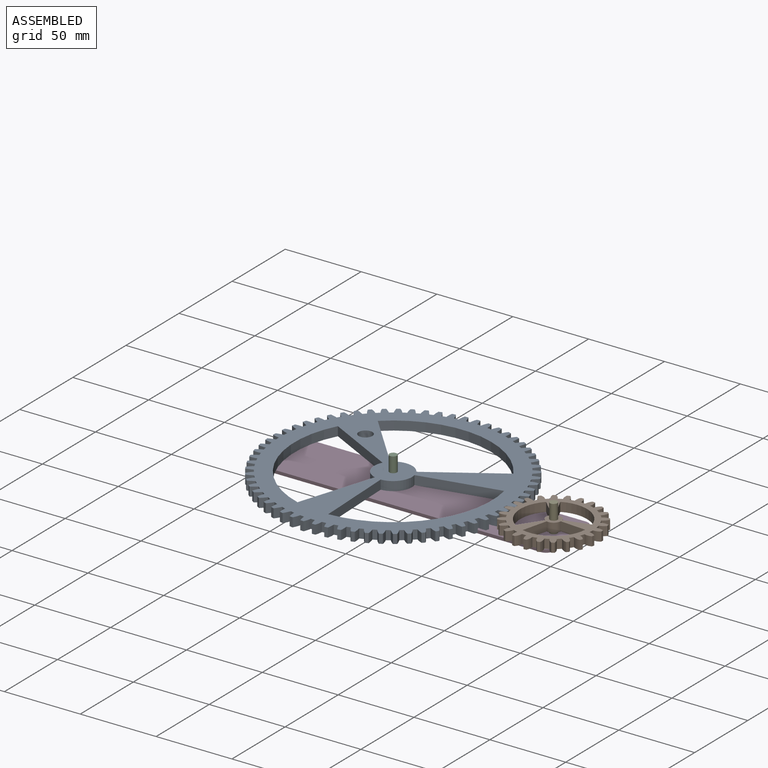
[diagram: assembled view]
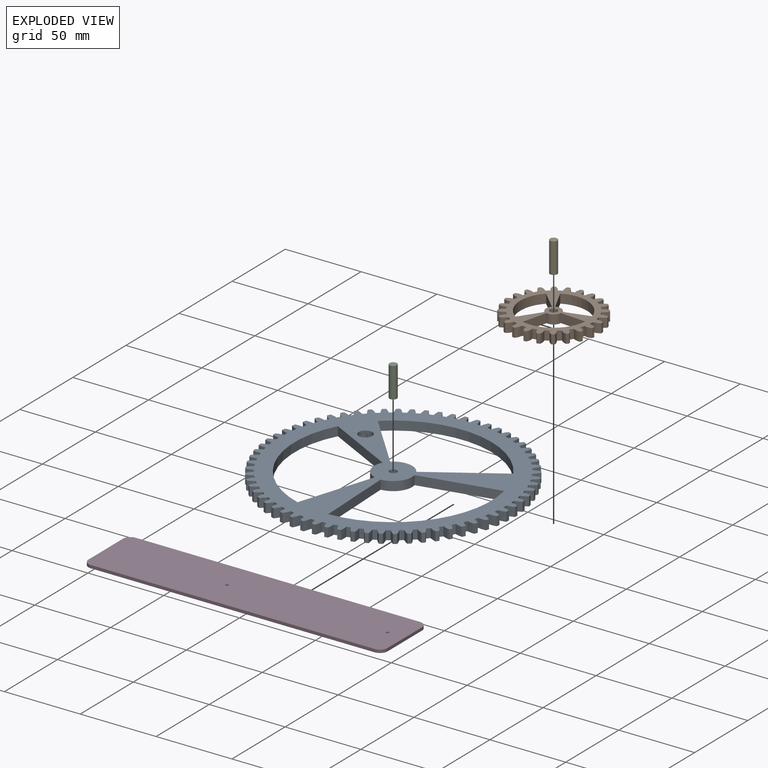
[diagram: exploded view]
GUIDED TOUR — MATED ASSEMBLY (Onshape document 71703d8ce9402ac45050cca8, AutoMate assembly 71703d8ce9402ac45050cca8_84dda2a453ee2d81a0888e5c_2b55f6c074666eb522d32de6_default)

This assembly has 5 components, labeled P0..P4 below (a component is one placed occurrence of a part; the same part can appear more than once), held together by 6 mates. A mate is a constraint between two components; its type names the relative motion it leaves free:
  PLANAR — leaves sliding in the plane through the listed point (normal = the listed direction) and rotation about that normal free,
  REVOLUTE — leaves rotation about the listed axis free (a hinge),
  SLIDER — leaves translation along the listed axis free.
Axis/direction vectors are unit vectors and 'through' points are millimeter coordinates, both in the assembly's world frame.

MATES
  1. REVOLUTE "Revolute 1": P0 <-> P2, axis (0.000, 0.000, 1.000) through (-22.15, 76.27, 9.00) mm
  2. SLIDER "Slider 2": P3 <-> P4, axis (0.000, 0.000, -1.000) through (83.61, 76.27, -1.00) mm
  3. REVOLUTE "Revolute 2": P4 <-> P1, axis (0.000, 0.000, -1.000) through (83.61, 76.27, 9.00) mm
  4. PLANAR "Planar 1": P2 <-> P3, direction (0.000, 0.000, -1.000) through (-22.15, 76.27, -1.00) mm
  5. SLIDER "Slider 1": P3 <-> P2, axis (0.000, 0.000, -1.000) through (-22.15, 76.27, -1.00) mm
  6. PLANAR "Planar 2": P4 <-> P3, direction (0.000, 0.000, -1.000) through (83.61, 76.27, -1.00) mm

ASSEMBLY ORDER
  1. P0 — the base component [order verified]
  2. P2 [order verified]
  3. P1 [order verified]
  4. P4 [order verified]
  5. P3 [order verified]
(P2, P4 verified with a relaxed clearance tolerance: the source model stores slight part interference there.)
Order-tag legend:
  [order verified] — this step's position reverses a verified removal order: the component was checked to insert without passing through the ones already placed.

Of the 5 components, 5 carry the full construction recipe — the FeatureScript program that regenerates the part's solid from scratch; the rest are supplied as boundary geometry only.
Each toured component is shown spotlighted twice — in the assembled view, then in the exploded view, where a leader line traces a displaced component back to its assembled socket (saturated green if recipe-attached, orange if geometry-only; every other component desaturated gray) — followed by its recipe or geometry summary and the mates that hold it.
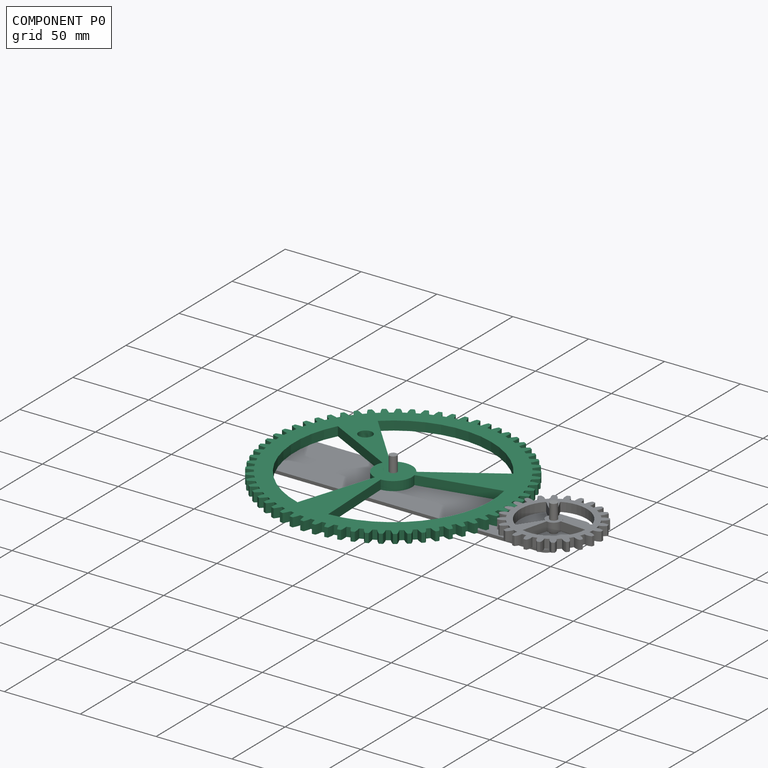
[diagram: component P0 — assembled]
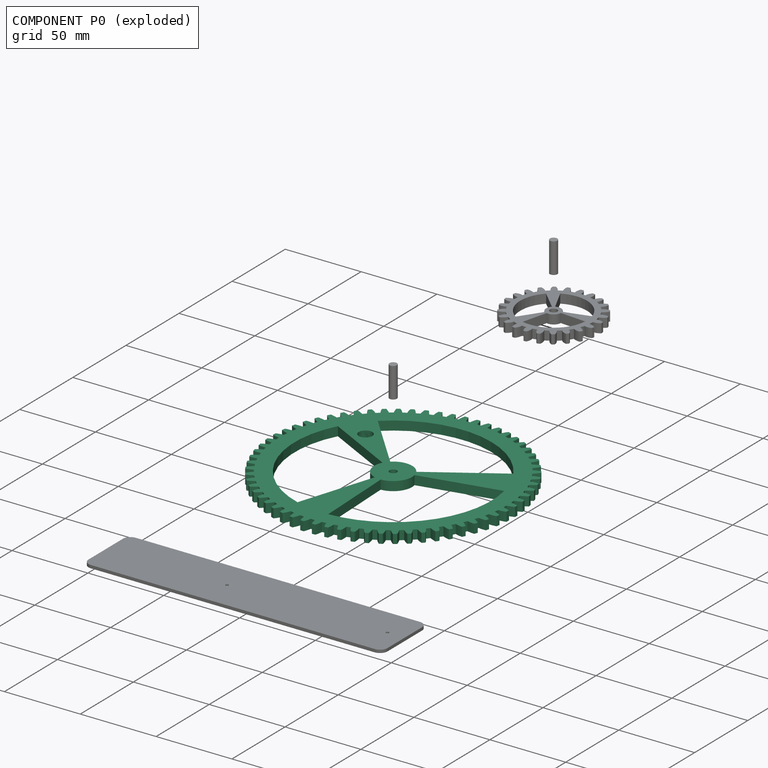
[diagram: component P0 — exploded]
COMPONENT P0 — recipe-attached (CADFS 00803800, mesh-verified: the recipe's output STEP matches this component's geometry to below the mesh-comparison resolution (tessellation chordal tolerance ~0.339 mm)).
Held by: REVOLUTE mate "Revolute 1" to P2.
Construction recipe (FeatureScript — the CAD program that rebuilds this solid; sketch coordinates are in the units given by the * unit suffixes, e.g. mm):

FeatureScript 1511;
import(path : "onshape/std/geometry.fs", version : "1511.0");
import(path : "onshape/std/common.fs", version : "1511.0");
const mm = millimeter;
const VERTEX = EntityType.VERTEX;
const EDGE = EntityType.EDGE;
const FACE = EntityType.FACE;
const BODY = EntityType.BODY;
function v(x, y){return vector(x, y);}
function OD(order){return orderDisambiguation(order);}
function OSD(set){return originalSetDisambiguation(set);}
function TD(topology){return topologyDisambiguation(topology);}
function TDD(query){return trueDependencyDisambiguation(query);}
function sQuery(a, b, c) {return sketchEntityQuery(a, b, c);}

annotation { "Feature Type Name" : "Feature", "Feature Type Description" : "" }
export const myFeature = defineFeature(function(context is Context, id is Id, definition is map)
    precondition{}
    {
        {
            var Q0;
            Q0=qCreatedBy(makeId("Top.planeOp"),FACE);
            var sketch = newSketch(context, id + "F0", { "sketchPlane" : qUnion([Q0])});
            skCircle(sketch, "E0", {"center": v(0, 0) * mm, "radius": 75.22 * mm, "construction": true});
            skCircle(sketch, "E1", {"center": v(0, 0) * mm, "radius": 77.61 * mm, "construction": true});
            skCircle(sketch, "E2", {"center": v(0, 0) * mm, "radius": 80 * mm, "construction": true});
            skLineSegment(sketch, "E3", {"start": v(0, 0) * mm, "end": v(0, 21.75) * mm, "construction": true});
            skLineSegment(sketch, "E4", {"start": v(0, 0) * mm, "end": v(-0.52, 21.72) * mm, "construction": true});
            skLineSegment(sketch, "E5", {"start": v(0, 77.61) * mm, "end": v(-10.54, 77.61) * mm, "construction": true});
            skLineSegment(sketch, "E6", {"start": v(0, 77.61) * mm, "end": v(-24.6, 71.02) * mm, "construction": true});
            skCircle(sketch, "E7", {"center": v(0, 77.61) * mm, "radius": 19.4 * mm, "construction": true});
            skCircle(sketch, "E8", {"center": v(-18.74, 72.6) * mm, "radius": 19.4 * mm, "construction": true});
            skArc(sketch, "E9", {"start": v(-37.48, 77.61) * mm, "mid": v(-38.1, 74.03) * mm, "end": v(-38.02, 70.39) * mm});
            skPoint(sketch, "E10.center", {"position": v(4.35, 4.65) * mm});
            skCircle(sketch, "E11", {"center": v(0, 0) * mm, "radius": 2.45 * mm});
            skArc(sketch, "E12", {"start": v(0.48, 75.22) * mm, "mid": v(-0.01, 77.65) * mm, "end": v(-0.8, 80) * mm});
            skArc(sketch, "E13.MirrorCS", {"start": v(-4.12, 75.11) * mm, "mid": v(-3.74, 77.56) * mm, "end": v(-3.06, 79.94) * mm});
            skArc(sketch, "E14", {"start": v(-0.8, 80) * mm, "mid": v(-1.93, 79.98) * mm, "end": v(-3.06, 79.94) * mm});
            skArc(sketch, "E15.1.0", {"start": v(-8.52, 79.54) * mm, "mid": v(-9.64, 79.42) * mm, "end": v(-10.76, 79.27) * mm});
            skArc(sketch, "E15.1.1", {"start": v(-6.78, 74.92) * mm, "mid": v(-7.5, 77.29) * mm, "end": v(-8.52, 79.54) * mm});
            skArc(sketch, "E15.1.2", {"start": v(-11.35, 74.36) * mm, "mid": v(-11.2, 76.84) * mm, "end": v(-10.76, 79.27) * mm});
            skArc(sketch, "E15.2.0", {"start": v(-16.16, 78.35) * mm, "mid": v(-17.26, 78.12) * mm, "end": v(-18.36, 77.86) * mm});
            skArc(sketch, "E15.2.1", {"start": v(-13.98, 73.91) * mm, "mid": v(-14.93, 76.2) * mm, "end": v(-16.16, 78.35) * mm});
            skArc(sketch, "E15.2.2", {"start": v(-18.47, 72.92) * mm, "mid": v(-18.57, 75.4) * mm, "end": v(-18.36, 77.86) * mm});
            skArc(sketch, "E15.3.0", {"start": v(-23.65, 76.42) * mm, "mid": v(-24.72, 76.08) * mm, "end": v(-25.79, 75.73) * mm});
            skArc(sketch, "E15.3.1", {"start": v(-21.05, 72.22) * mm, "mid": v(-22.21, 74.4) * mm, "end": v(-23.65, 76.42) * mm});
            skArc(sketch, "E15.3.2", {"start": v(-25.42, 70.8) * mm, "mid": v(-25.76, 73.25) * mm, "end": v(-25.79, 75.73) * mm});
            skArc(sketch, "E15.4.0", {"start": v(-30.91, 73.79) * mm, "mid": v(-31.95, 73.34) * mm, "end": v(-32.98, 72.89) * mm});
            skArc(sketch, "E15.4.1", {"start": v(-27.92, 69.85) * mm, "mid": v(-29.3, 71.91) * mm, "end": v(-30.91, 73.79) * mm});
            skArc(sketch, "E15.4.2", {"start": v(-32.14, 68.01) * mm, "mid": v(-32.71, 70.42) * mm, "end": v(-32.98, 72.89) * mm});
            skArc(sketch, "E15.5.0", {"start": v(-37.9, 70.46) * mm, "mid": v(-38.88, 69.92) * mm, "end": v(-39.86, 69.36) * mm});
            skArc(sketch, "E15.5.1", {"start": v(-34.53, 66.83) * mm, "mid": v(-36.1, 68.75) * mm, "end": v(-37.9, 70.46) * mm});
            skArc(sketch, "E15.5.2", {"start": v(-38.55, 64.6) * mm, "mid": v(-39.36, 66.94) * mm, "end": v(-39.86, 69.36) * mm});
            skArc(sketch, "E15.6.0", {"start": v(-44.51, 66.47) * mm, "mid": v(-45.45, 65.84) * mm, "end": v(-46.37, 65.2) * mm});
            skArc(sketch, "E15.6.1", {"start": v(-40.82, 63.19) * mm, "mid": v(-42.56, 64.95) * mm, "end": v(-44.51, 66.47) * mm});
            skArc(sketch, "E15.6.2", {"start": v(-44.6, 60.57) * mm, "mid": v(-45.63, 62.83) * mm, "end": v(-46.37, 65.2) * mm});
            skArc(sketch, "E15.7.0", {"start": v(-50.72, 61.86) * mm, "mid": v(-51.59, 61.15) * mm, "end": v(-52.44, 60.41) * mm});
            skArc(sketch, "E15.7.1", {"start": v(-46.73, 58.95) * mm, "mid": v(-48.63, 60.54) * mm, "end": v(-50.72, 61.86) * mm});
            skArc(sketch, "E15.7.2", {"start": v(-50.24, 55.99) * mm, "mid": v(-51.48, 58.13) * mm, "end": v(-52.44, 60.41) * mm});
            skArc(sketch, "E15.8.0", {"start": v(-56.46, 56.68) * mm, "mid": v(-57.25, 55.88) * mm, "end": v(-58.03, 55.07) * mm});
            skArc(sketch, "E15.8.1", {"start": v(-52.2, 54.17) * mm, "mid": v(-54.25, 55.56) * mm, "end": v(-56.46, 56.68) * mm});
            skArc(sketch, "E15.8.2", {"start": v(-55.41, 50.87) * mm, "mid": v(-56.85, 52.89) * mm, "end": v(-58.03, 55.07) * mm});
            skArc(sketch, "E15.9.0", {"start": v(-61.66, 50.97) * mm, "mid": v(-62.37, 50.1) * mm, "end": v(-63.07, 49.21) * mm});
            skArc(sketch, "E15.9.1", {"start": v(-57.18, 48.87) * mm, "mid": v(-59.36, 50.06) * mm, "end": v(-61.66, 50.97) * mm});
            skArc(sketch, "E15.9.2", {"start": v(-60.06, 45.29) * mm, "mid": v(-61.7, 47.15) * mm, "end": v(-63.07, 49.21) * mm});
            skArc(sketch, "E15.10.0", {"start": v(-66.3, 44.78) * mm, "mid": v(-66.92, 43.84) * mm, "end": v(-67.53, 42.9) * mm});
            skArc(sketch, "E15.10.1", {"start": v(-61.63, 43.13) * mm, "mid": v(-63.91, 44.1) * mm, "end": v(-66.3, 44.78) * mm});
            skArc(sketch, "E15.10.2", {"start": v(-64.15, 39.28) * mm, "mid": v(-65.96, 40.98) * mm, "end": v(-67.53, 42.9) * mm});
            skArc(sketch, "E15.11.0", {"start": v(-70.3, 38.17) * mm, "mid": v(-70.84, 37.18) * mm, "end": v(-71.35, 36.18) * mm});
            skArc(sketch, "E15.11.1", {"start": v(-65.5, 36.98) * mm, "mid": v(-67.87, 37.73) * mm, "end": v(-70.3, 38.17) * mm});
            skArc(sketch, "E15.11.2", {"start": v(-67.64, 32.9) * mm, "mid": v(-69.6, 34.42) * mm, "end": v(-71.35, 36.18) * mm});
            skArc(sketch, "E15.12.0", {"start": v(-73.66, 31.2) * mm, "mid": v(-74.1, 30.17) * mm, "end": v(-74.51, 29.12) * mm});
            skArc(sketch, "E15.12.1", {"start": v(-68.77, 30.48) * mm, "mid": v(-71.2, 31) * mm, "end": v(-73.66, 31.2) * mm});
            skArc(sketch, "E15.12.2", {"start": v(-70.5, 26.22) * mm, "mid": v(-72.6, 27.54) * mm, "end": v(-74.51, 29.12) * mm});
            skArc(sketch, "E15.13.0", {"start": v(-76.33, 23.95) * mm, "mid": v(-76.66, 22.88) * mm, "end": v(-76.97, 21.8) * mm});
            skArc(sketch, "E15.13.1", {"start": v(-71.4, 23.7) * mm, "mid": v(-73.85, 23.99) * mm, "end": v(-76.33, 23.95) * mm});
            skArc(sketch, "E15.13.2", {"start": v(-72.7, 19.3) * mm, "mid": v(-74.92, 20.4) * mm, "end": v(-76.97, 21.8) * mm});
            skArc(sketch, "E15.14.0", {"start": v(-78.29, 16.47) * mm, "mid": v(-78.5, 15.37) * mm, "end": v(-78.72, 14.26) * mm});
            skArc(sketch, "E15.14.1", {"start": v(-73.35, 16.7) * mm, "mid": v(-75.82, 16.75) * mm, "end": v(-78.29, 16.47) * mm});
            skArc(sketch, "E15.14.2", {"start": v(-74.23, 12.19) * mm, "mid": v(-76.54, 13.08) * mm, "end": v(-78.72, 14.26) * mm});
            skArc(sketch, "E15.15.0", {"start": v(-79.51, 8.84) * mm, "mid": v(-79.63, 7.72) * mm, "end": v(-79.73, 6.6) * mm});
            skArc(sketch, "E15.15.1", {"start": v(-74.62, 9.55) * mm, "mid": v(-77.09, 9.35) * mm, "end": v(-79.51, 8.84) * mm});
            skArc(sketch, "E15.15.2", {"start": v(-75.06, 4.97) * mm, "mid": v(-77.45, 5.63) * mm, "end": v(-79.73, 6.6) * mm});
            skArc(sketch, "E15.16.0", {"start": v(-80, 1.13) * mm, "mid": v(-80, 0) * mm, "end": v(-80, -1.13) * mm});
            skArc(sketch, "E15.16.1", {"start": v(-75.19, 2.3) * mm, "mid": v(-77.63, 1.87) * mm, "end": v(-80, 1.13) * mm});
            skArc(sketch, "E15.16.2", {"start": v(-75.19, -2.3) * mm, "mid": v(-77.63, -1.87) * mm, "end": v(-80, -1.13) * mm});
            skArc(sketch, "E15.17.0", {"start": v(-79.73, -6.6) * mm, "mid": v(-79.63, -7.72) * mm, "end": v(-79.51, -8.84) * mm});
            skArc(sketch, "E15.17.1", {"start": v(-75.06, -4.97) * mm, "mid": v(-77.45, -5.63) * mm, "end": v(-79.73, -6.6) * mm});
            skArc(sketch, "E15.17.2", {"start": v(-74.62, -9.55) * mm, "mid": v(-77.09, -9.35) * mm, "end": v(-79.51, -8.84) * mm});
            skArc(sketch, "E15.18.0", {"start": v(-78.72, -14.26) * mm, "mid": v(-78.5, -15.37) * mm, "end": v(-78.29, -16.47) * mm});
            skArc(sketch, "E15.18.1", {"start": v(-74.23, -12.19) * mm, "mid": v(-76.54, -13.08) * mm, "end": v(-78.72, -14.26) * mm});
            skArc(sketch, "E15.18.2", {"start": v(-73.35, -16.7) * mm, "mid": v(-75.82, -16.75) * mm, "end": v(-78.29, -16.47) * mm});
            skArc(sketch, "E15.19.0", {"start": v(-76.97, -21.8) * mm, "mid": v(-76.66, -22.88) * mm, "end": v(-76.33, -23.95) * mm});
            skArc(sketch, "E15.19.1", {"start": v(-72.7, -19.3) * mm, "mid": v(-74.92, -20.4) * mm, "end": v(-76.97, -21.8) * mm});
            skArc(sketch, "E15.19.2", {"start": v(-71.4, -23.7) * mm, "mid": v(-73.85, -23.99) * mm, "end": v(-76.33, -23.95) * mm});
            skArc(sketch, "E15.20.0", {"start": v(-74.51, -29.12) * mm, "mid": v(-74.1, -30.17) * mm, "end": v(-73.66, -31.2) * mm});
            skArc(sketch, "E15.20.1", {"start": v(-70.5, -26.22) * mm, "mid": v(-72.6, -27.54) * mm, "end": v(-74.51, -29.12) * mm});
            skArc(sketch, "E15.20.2", {"start": v(-68.77, -30.48) * mm, "mid": v(-71.2, -31) * mm, "end": v(-73.66, -31.2) * mm});
            skArc(sketch, "E15.21.0", {"start": v(-71.35, -36.18) * mm, "mid": v(-70.84, -37.18) * mm, "end": v(-70.3, -38.17) * mm});
            skArc(sketch, "E15.21.1", {"start": v(-67.64, -32.9) * mm, "mid": v(-69.6, -34.42) * mm, "end": v(-71.35, -36.18) * mm});
            skArc(sketch, "E15.21.2", {"start": v(-65.5, -36.98) * mm, "mid": v(-67.87, -37.73) * mm, "end": v(-70.3, -38.17) * mm});
            skArc(sketch, "E15.22.0", {"start": v(-67.53, -42.9) * mm, "mid": v(-66.92, -43.84) * mm, "end": v(-66.3, -44.78) * mm});
            skArc(sketch, "E15.22.1", {"start": v(-64.15, -39.28) * mm, "mid": v(-65.96, -40.98) * mm, "end": v(-67.53, -42.9) * mm});
            skArc(sketch, "E15.22.2", {"start": v(-61.63, -43.13) * mm, "mid": v(-63.91, -44.1) * mm, "end": v(-66.3, -44.78) * mm});
            skArc(sketch, "E15.23.0", {"start": v(-63.07, -49.21) * mm, "mid": v(-62.37, -50.1) * mm, "end": v(-61.66, -50.97) * mm});
            skArc(sketch, "E15.23.1", {"start": v(-60.06, -45.29) * mm, "mid": v(-61.7, -47.15) * mm, "end": v(-63.07, -49.21) * mm});
            skArc(sketch, "E15.23.2", {"start": v(-57.18, -48.87) * mm, "mid": v(-59.36, -50.06) * mm, "end": v(-61.66, -50.97) * mm});
            skArc(sketch, "E15.24.0", {"start": v(-58.03, -55.07) * mm, "mid": v(-57.25, -55.88) * mm, "end": v(-56.46, -56.68) * mm});
            skArc(sketch, "E15.24.1", {"start": v(-55.41, -50.87) * mm, "mid": v(-56.85, -52.89) * mm, "end": v(-58.03, -55.07) * mm});
            skArc(sketch, "E15.24.2", {"start": v(-52.2, -54.17) * mm, "mid": v(-54.25, -55.56) * mm, "end": v(-56.46, -56.68) * mm});
            skArc(sketch, "E15.25.0", {"start": v(-52.44, -60.41) * mm, "mid": v(-51.59, -61.15) * mm, "end": v(-50.72, -61.86) * mm});
            skArc(sketch, "E15.25.1", {"start": v(-50.24, -55.99) * mm, "mid": v(-51.48, -58.13) * mm, "end": v(-52.44, -60.41) * mm});
            skArc(sketch, "E15.25.2", {"start": v(-46.73, -58.95) * mm, "mid": v(-48.63, -60.54) * mm, "end": v(-50.72, -61.86) * mm});
            skArc(sketch, "E15.26.0", {"start": v(-46.37, -65.2) * mm, "mid": v(-45.45, -65.84) * mm, "end": v(-44.51, -66.47) * mm});
            skArc(sketch, "E15.26.1", {"start": v(-44.6, -60.57) * mm, "mid": v(-45.63, -62.83) * mm, "end": v(-46.37, -65.2) * mm});
            skArc(sketch, "E15.26.2", {"start": v(-40.82, -63.19) * mm, "mid": v(-42.56, -64.95) * mm, "end": v(-44.51, -66.47) * mm});
            skArc(sketch, "E15.27.0", {"start": v(-39.86, -69.36) * mm, "mid": v(-38.88, -69.92) * mm, "end": v(-37.9, -70.46) * mm});
            skArc(sketch, "E15.27.1", {"start": v(-38.55, -64.6) * mm, "mid": v(-39.36, -66.94) * mm, "end": v(-39.86, -69.36) * mm});
            skArc(sketch, "E15.27.2", {"start": v(-34.53, -66.83) * mm, "mid": v(-36.1, -68.75) * mm, "end": v(-37.9, -70.46) * mm});
            skArc(sketch, "E15.28.0", {"start": v(-32.98, -72.89) * mm, "mid": v(-31.95, -73.34) * mm, "end": v(-30.91, -73.79) * mm});
            skArc(sketch, "E15.28.1", {"start": v(-32.14, -68.01) * mm, "mid": v(-32.71, -70.42) * mm, "end": v(-32.98, -72.89) * mm});
            skArc(sketch, "E15.28.2", {"start": v(-27.92, -69.85) * mm, "mid": v(-29.3, -71.91) * mm, "end": v(-30.91, -73.79) * mm});
            skArc(sketch, "E15.29.0", {"start": v(-25.79, -75.73) * mm, "mid": v(-24.72, -76.08) * mm, "end": v(-23.65, -76.42) * mm});
            skArc(sketch, "E15.29.1", {"start": v(-25.42, -70.8) * mm, "mid": v(-25.76, -73.25) * mm, "end": v(-25.79, -75.73) * mm});
            skArc(sketch, "E15.29.2", {"start": v(-21.05, -72.22) * mm, "mid": v(-22.21, -74.4) * mm, "end": v(-23.65, -76.42) * mm});
            skArc(sketch, "E15.30.0", {"start": v(-18.36, -77.86) * mm, "mid": v(-17.26, -78.12) * mm, "end": v(-16.16, -78.35) * mm});
            skArc(sketch, "E15.30.1", {"start": v(-18.47, -72.92) * mm, "mid": v(-18.57, -75.4) * mm, "end": v(-18.36, -77.86) * mm});
            skArc(sketch, "E15.30.2", {"start": v(-13.98, -73.91) * mm, "mid": v(-14.93, -76.2) * mm, "end": v(-16.16, -78.35) * mm});
            skArc(sketch, "E15.31.0", {"start": v(-10.76, -79.27) * mm, "mid": v(-9.64, -79.42) * mm, "end": v(-8.52, -79.54) * mm});
            skArc(sketch, "E15.31.1", {"start": v(-11.35, -74.36) * mm, "mid": v(-11.2, -76.84) * mm, "end": v(-10.76, -79.27) * mm});
            skArc(sketch, "E15.31.2", {"start": v(-6.78, -74.92) * mm, "mid": v(-7.5, -77.29) * mm, "end": v(-8.52, -79.54) * mm});
            skArc(sketch, "E15.32.0", {"start": v(-3.06, -79.94) * mm, "mid": v(-1.93, -79.98) * mm, "end": v(-0.8, -80) * mm});
            skArc(sketch, "E15.32.1", {"start": v(-4.12, -75.11) * mm, "mid": v(-3.74, -77.56) * mm, "end": v(-3.06, -79.94) * mm});
            skArc(sketch, "E15.32.2", {"start": v(0.48, -75.22) * mm, "mid": v(-0.01, -77.65) * mm, "end": v(-0.8, -80) * mm});
            skArc(sketch, "E15.33.0", {"start": v(4.67, -79.86) * mm, "mid": v(5.8, -79.79) * mm, "end": v(6.92, -79.7) * mm});
            skArc(sketch, "E15.33.1", {"start": v(3.15, -75.16) * mm, "mid": v(3.76, -77.56) * mm, "end": v(4.67, -79.86) * mm});
            skArc(sketch, "E15.33.2", {"start": v(7.74, -74.82) * mm, "mid": v(7.48, -77.29) * mm, "end": v(6.92, -79.7) * mm});
            skArc(sketch, "E15.34.0", {"start": v(12.36, -79.04) * mm, "mid": v(13.47, -78.86) * mm, "end": v(14.58, -78.66) * mm});
            skArc(sketch, "E15.34.1", {"start": v(10.4, -74.5) * mm, "mid": v(11.23, -76.83) * mm, "end": v(12.36, -79.04) * mm});
            skArc(sketch, "E15.34.2", {"start": v(14.93, -73.73) * mm, "mid": v(14.9, -76.2) * mm, "end": v(14.58, -78.66) * mm});
            skArc(sketch, "E15.35.0", {"start": v(19.93, -77.48) * mm, "mid": v(21.02, -77.2) * mm, "end": v(22.1, -76.89) * mm});
            skArc(sketch, "E15.35.1", {"start": v(17.53, -73.15) * mm, "mid": v(18.6, -75.4) * mm, "end": v(19.93, -77.48) * mm});
            skArc(sketch, "E15.35.2", {"start": v(21.97, -71.94) * mm, "mid": v(22.2, -74.41) * mm, "end": v(22.1, -76.89) * mm});
            skArc(sketch, "E15.36.0", {"start": v(27.31, -75.2) * mm, "mid": v(28.37, -74.8) * mm, "end": v(29.42, -74.4) * mm});
            skArc(sketch, "E15.36.1", {"start": v(24.51, -71.12) * mm, "mid": v(25.78, -73.25) * mm, "end": v(27.31, -75.2) * mm});
            skArc(sketch, "E15.36.2", {"start": v(28.81, -69.49) * mm, "mid": v(29.27, -71.92) * mm, "end": v(29.42, -74.4) * mm});
            skArc(sketch, "E15.37.0", {"start": v(34.44, -72.2) * mm, "mid": v(35.46, -71.71) * mm, "end": v(36.46, -71.2) * mm});
            skArc(sketch, "E15.37.1", {"start": v(31.26, -68.42) * mm, "mid": v(32.73, -70.41) * mm, "end": v(34.44, -72.2) * mm});
            skArc(sketch, "E15.37.2", {"start": v(35.38, -66.38) * mm, "mid": v(36.08, -68.76) * mm, "end": v(36.46, -71.2) * mm});
            skArc(sketch, "E15.38.0", {"start": v(41.25, -68.54) * mm, "mid": v(42.21, -67.96) * mm, "end": v(43.16, -67.36) * mm});
            skArc(sketch, "E15.38.1", {"start": v(37.72, -65.08) * mm, "mid": v(39.37, -66.93) * mm, "end": v(41.25, -68.54) * mm});
            skArc(sketch, "E15.38.2", {"start": v(41.63, -62.66) * mm, "mid": v(42.54, -64.96) * mm, "end": v(43.16, -67.36) * mm});
            skArc(sketch, "E15.39.0", {"start": v(47.67, -64.24) * mm, "mid": v(48.57, -63.57) * mm, "end": v(49.46, -62.88) * mm});
            skArc(sketch, "E15.39.1", {"start": v(43.82, -61.14) * mm, "mid": v(45.65, -62.81) * mm, "end": v(47.67, -64.24) * mm});
            skArc(sketch, "E15.39.2", {"start": v(47.48, -58.35) * mm, "mid": v(48.62, -60.55) * mm, "end": v(49.46, -62.88) * mm});
            skArc(sketch, "E15.40.0", {"start": v(53.65, -59.34) * mm, "mid": v(54.48, -58.58) * mm, "end": v(55.3, -57.8) * mm});
            skArc(sketch, "E15.40.1", {"start": v(49.52, -56.62) * mm, "mid": v(51.5, -58.12) * mm, "end": v(53.65, -59.34) * mm});
            skArc(sketch, "E15.40.2", {"start": v(52.89, -53.5) * mm, "mid": v(54.23, -55.57) * mm, "end": v(55.3, -57.8) * mm});
            skArc(sketch, "E15.41.0", {"start": v(59.13, -53.89) * mm, "mid": v(59.88, -53.05) * mm, "end": v(60.62, -52.2) * mm});
            skArc(sketch, "E15.41.1", {"start": v(54.75, -51.58) * mm, "mid": v(56.87, -52.87) * mm, "end": v(59.13, -53.89) * mm});
            skArc(sketch, "E15.41.2", {"start": v(57.8, -48.14) * mm, "mid": v(59.34, -50.08) * mm, "end": v(60.62, -52.2) * mm});
            skArc(sketch, "E15.42.0", {"start": v(64.05, -47.93) * mm, "mid": v(64.72, -47.02) * mm, "end": v(65.38, -46.1) * mm});
            skArc(sketch, "E15.42.1", {"start": v(59.48, -46.05) * mm, "mid": v(61.7, -47.14) * mm, "end": v(64.05, -47.93) * mm});
            skArc(sketch, "E15.42.2", {"start": v(62.18, -42.33) * mm, "mid": v(63.9, -44.12) * mm, "end": v(65.38, -46.1) * mm});
            skArc(sketch, "E15.43.0", {"start": v(68.38, -41.52) * mm, "mid": v(68.96, -40.56) * mm, "end": v(69.52, -39.58) * mm});
            skArc(sketch, "E15.43.1", {"start": v(63.64, -40.1) * mm, "mid": v(65.97, -40.96) * mm, "end": v(68.38, -41.52) * mm});
            skArc(sketch, "E15.43.2", {"start": v(65.98, -36.14) * mm, "mid": v(67.86, -37.75) * mm, "end": v(69.52, -39.58) * mm});
            skArc(sketch, "E15.44.0", {"start": v(72.07, -34.73) * mm, "mid": v(72.55, -33.71) * mm, "end": v(73.02, -32.69) * mm});
            skArc(sketch, "E15.44.1", {"start": v(67.22, -33.77) * mm, "mid": v(69.61, -34.4) * mm, "end": v(72.07, -34.73) * mm});
            skArc(sketch, "E15.44.2", {"start": v(69.16, -29.6) * mm, "mid": v(71.19, -31.02) * mm, "end": v(73.02, -32.69) * mm});
            skArc(sketch, "E15.45.0", {"start": v(75.08, -27.61) * mm, "mid": v(75.46, -26.55) * mm, "end": v(75.83, -25.49) * mm});
            skArc(sketch, "E15.45.1", {"start": v(70.16, -27.12) * mm, "mid": v(72.6, -27.53) * mm, "end": v(75.08, -27.61) * mm});
            skArc(sketch, "E15.45.2", {"start": v(71.69, -22.79) * mm, "mid": v(73.85, -24) * mm, "end": v(75.83, -25.49) * mm});
            skArc(sketch, "E15.46.0", {"start": v(77.4, -20.24) * mm, "mid": v(77.68, -19.15) * mm, "end": v(77.94, -18.05) * mm});
            skArc(sketch, "E15.46.1", {"start": v(72.45, -20.23) * mm, "mid": v(74.93, -20.39) * mm, "end": v(77.4, -20.24) * mm});
            skArc(sketch, "E15.46.2", {"start": v(73.55, -15.76) * mm, "mid": v(75.82, -16.77) * mm, "end": v(77.94, -18.05) * mm});
            skArc(sketch, "E15.47.0", {"start": v(79, -12.67) * mm, "mid": v(79.16, -11.56) * mm, "end": v(79.32, -10.44) * mm});
            skArc(sketch, "E15.47.1", {"start": v(74.07, -13.14) * mm, "mid": v(76.54, -13.06) * mm, "end": v(79, -12.67) * mm});
            skArc(sketch, "E15.47.2", {"start": v(74.73, -8.59) * mm, "mid": v(77.08, -9.37) * mm, "end": v(79.32, -10.44) * mm});
            skArc(sketch, "E16.4.48.0", {"start": v(74.99, -5.93) * mm, "mid": v(77.45, -5.61) * mm, "end": v(79.84, -4.99) * mm});
            skArc(sketch, "E16.8.48.0", {"start": v(75.21, -1.34) * mm, "mid": v(77.63, -1.89) * mm, "end": v(79.95, -2.74) * mm});
            skArc(sketch, "E16.10.48.0", {"start": v(79.84, -4.99) * mm, "mid": v(79.9, -3.87) * mm, "end": v(79.95, -2.74) * mm});
            skArc(sketch, "E16.4.49.0", {"start": v(75.21, 1.34) * mm, "mid": v(77.63, 1.89) * mm, "end": v(79.95, 2.74) * mm});
            skArc(sketch, "E16.8.49.0", {"start": v(74.99, 5.93) * mm, "mid": v(77.45, 5.61) * mm, "end": v(79.84, 4.99) * mm});
            skArc(sketch, "E16.10.49.0", {"start": v(79.95, 2.74) * mm, "mid": v(79.9, 3.87) * mm, "end": v(79.84, 4.99) * mm});
            skArc(sketch, "E17", {"start": v(3.15, 75.16) * mm, "mid": v(1.82, 75.2) * mm, "end": v(0.48, 75.22) * mm});
            skArc(sketch, "E18.1.0", {"start": v(-4.12, 75.11) * mm, "mid": v(-5.45, 75.03) * mm, "end": v(-6.78, 74.92) * mm});
            skArc(sketch, "E18.2.0", {"start": v(-11.35, 74.36) * mm, "mid": v(-12.66, 74.15) * mm, "end": v(-13.98, 73.91) * mm});
            skArc(sketch, "E18.3.0", {"start": v(-18.47, 72.92) * mm, "mid": v(-19.76, 72.58) * mm, "end": v(-21.05, 72.22) * mm});
            skArc(sketch, "E18.4.0", {"start": v(-25.42, 70.8) * mm, "mid": v(-26.67, 70.34) * mm, "end": v(-27.92, 69.85) * mm});
            skArc(sketch, "E18.5.0", {"start": v(-32.14, 68.01) * mm, "mid": v(-33.34, 67.43) * mm, "end": v(-34.53, 66.83) * mm});
            skArc(sketch, "E18.6.0", {"start": v(-38.55, 64.6) * mm, "mid": v(-39.7, 63.9) * mm, "end": v(-40.82, 63.19) * mm});
            skArc(sketch, "E18.7.0", {"start": v(-44.6, 60.57) * mm, "mid": v(-45.67, 59.77) * mm, "end": v(-46.73, 58.95) * mm});
            skArc(sketch, "E18.8.0", {"start": v(-50.24, 55.99) * mm, "mid": v(-51.23, 55.08) * mm, "end": v(-52.2, 54.17) * mm});
            skArc(sketch, "E18.9.0", {"start": v(-55.41, 50.87) * mm, "mid": v(-56.3, 49.88) * mm, "end": v(-57.18, 48.87) * mm});
            skArc(sketch, "E18.10.0", {"start": v(-60.06, 45.29) * mm, "mid": v(-60.86, 44.22) * mm, "end": v(-61.63, 43.13) * mm});
            skArc(sketch, "E18.11.0", {"start": v(-64.15, 39.28) * mm, "mid": v(-64.84, 38.14) * mm, "end": v(-65.5, 36.98) * mm});
            skArc(sketch, "E18.12.0", {"start": v(-67.64, 32.9) * mm, "mid": v(-68.22, 31.7) * mm, "end": v(-68.77, 30.48) * mm});
            skArc(sketch, "E18.13.0", {"start": v(-70.5, 26.22) * mm, "mid": v(-70.96, 24.97) * mm, "end": v(-71.4, 23.7) * mm});
            skArc(sketch, "E18.14.0", {"start": v(-72.7, 19.3) * mm, "mid": v(-73.04, 18) * mm, "end": v(-73.35, 16.7) * mm});
            skArc(sketch, "E18.15.0", {"start": v(-74.23, 12.19) * mm, "mid": v(-74.43, 10.87) * mm, "end": v(-74.62, 9.55) * mm});
            skArc(sketch, "E18.16.0", {"start": v(-75.06, 4.97) * mm, "mid": v(-75.14, 3.63) * mm, "end": v(-75.19, 2.3) * mm});
            skArc(sketch, "E18.17.0", {"start": v(-75.19, -2.3) * mm, "mid": v(-75.14, -3.63) * mm, "end": v(-75.06, -4.97) * mm});
            skArc(sketch, "E18.18.0", {"start": v(-74.62, -9.55) * mm, "mid": v(-74.43, -10.87) * mm, "end": v(-74.23, -12.19) * mm});
            skArc(sketch, "E18.19.0", {"start": v(-73.35, -16.7) * mm, "mid": v(-73.04, -18) * mm, "end": v(-72.7, -19.3) * mm});
            skArc(sketch, "E18.20.0", {"start": v(-71.4, -23.7) * mm, "mid": v(-70.96, -24.97) * mm, "end": v(-70.5, -26.22) * mm});
            skArc(sketch, "E18.21.0", {"start": v(-68.77, -30.48) * mm, "mid": v(-68.22, -31.7) * mm, "end": v(-67.64, -32.9) * mm});
            skArc(sketch, "E18.22.0", {"start": v(-65.5, -36.98) * mm, "mid": v(-64.84, -38.14) * mm, "end": v(-64.15, -39.28) * mm});
            skArc(sketch, "E18.23.0", {"start": v(-61.63, -43.13) * mm, "mid": v(-60.86, -44.22) * mm, "end": v(-60.06, -45.29) * mm});
            skArc(sketch, "E18.24.0", {"start": v(-57.18, -48.87) * mm, "mid": v(-56.3, -49.88) * mm, "end": v(-55.41, -50.87) * mm});
            skArc(sketch, "E18.25.0", {"start": v(-52.2, -54.17) * mm, "mid": v(-51.23, -55.08) * mm, "end": v(-50.24, -55.99) * mm});
            skArc(sketch, "E18.26.0", {"start": v(-46.73, -58.95) * mm, "mid": v(-45.67, -59.77) * mm, "end": v(-44.6, -60.57) * mm});
            skArc(sketch, "E18.27.0", {"start": v(-40.82, -63.19) * mm, "mid": v(-39.7, -63.9) * mm, "end": v(-38.55, -64.6) * mm});
            skArc(sketch, "E18.28.0", {"start": v(-34.53, -66.83) * mm, "mid": v(-33.34, -67.43) * mm, "end": v(-32.14, -68.01) * mm});
            skArc(sketch, "E18.29.0", {"start": v(-27.92, -69.85) * mm, "mid": v(-26.67, -70.34) * mm, "end": v(-25.42, -70.8) * mm});
            skArc(sketch, "E18.30.0", {"start": v(-21.05, -72.22) * mm, "mid": v(-19.76, -72.58) * mm, "end": v(-18.47, -72.92) * mm});
            skArc(sketch, "E18.31.0", {"start": v(-13.98, -73.91) * mm, "mid": v(-12.66, -74.15) * mm, "end": v(-11.35, -74.36) * mm});
            skArc(sketch, "E18.32.0", {"start": v(-6.78, -74.92) * mm, "mid": v(-5.45, -75.03) * mm, "end": v(-4.12, -75.11) * mm});
            skArc(sketch, "E18.33.0", {"start": v(0.48, -75.22) * mm, "mid": v(1.82, -75.2) * mm, "end": v(3.15, -75.16) * mm});
            skArc(sketch, "E18.34.0", {"start": v(7.74, -74.82) * mm, "mid": v(9.07, -74.68) * mm, "end": v(10.4, -74.5) * mm});
            skArc(sketch, "E18.35.0", {"start": v(14.93, -73.73) * mm, "mid": v(16.23, -73.45) * mm, "end": v(17.53, -73.15) * mm});
            skArc(sketch, "E18.36.0", {"start": v(21.97, -71.94) * mm, "mid": v(23.25, -71.54) * mm, "end": v(24.51, -71.12) * mm});
            skArc(sketch, "E18.37.0", {"start": v(28.81, -69.49) * mm, "mid": v(30.04, -68.96) * mm, "end": v(31.26, -68.42) * mm});
            skArc(sketch, "E18.38.0", {"start": v(35.38, -66.38) * mm, "mid": v(36.56, -65.74) * mm, "end": v(37.72, -65.08) * mm});
            skArc(sketch, "E18.39.0", {"start": v(41.63, -62.66) * mm, "mid": v(42.73, -61.9) * mm, "end": v(43.82, -61.14) * mm});
            skArc(sketch, "E18.40.0", {"start": v(47.48, -58.35) * mm, "mid": v(48.5, -57.5) * mm, "end": v(49.52, -56.62) * mm});
            skArc(sketch, "E18.41.0", {"start": v(52.89, -53.5) * mm, "mid": v(53.83, -52.54) * mm, "end": v(54.75, -51.58) * mm});
            skArc(sketch, "E18.42.0", {"start": v(57.8, -48.14) * mm, "mid": v(58.65, -47.1) * mm, "end": v(59.48, -46.05) * mm});
            skArc(sketch, "E18.43.0", {"start": v(62.18, -42.33) * mm, "mid": v(62.92, -41.22) * mm, "end": v(63.64, -40.1) * mm});
            skArc(sketch, "E18.44.0", {"start": v(65.98, -36.14) * mm, "mid": v(66.6, -34.96) * mm, "end": v(67.22, -33.77) * mm});
            skArc(sketch, "E18.45.0", {"start": v(69.16, -29.6) * mm, "mid": v(69.67, -28.37) * mm, "end": v(70.16, -27.12) * mm});
            skArc(sketch, "E18.46.0", {"start": v(71.69, -22.79) * mm, "mid": v(72.08, -21.5) * mm, "end": v(72.45, -20.23) * mm});
            skArc(sketch, "E18.47.0", {"start": v(73.55, -15.76) * mm, "mid": v(73.82, -14.45) * mm, "end": v(74.07, -13.14) * mm});
            skArc(sketch, "E18.48.0", {"start": v(74.73, -8.59) * mm, "mid": v(74.87, -7.26) * mm, "end": v(74.99, -5.93) * mm});
            skArc(sketch, "E18.49.0", {"start": v(75.21, -1.34) * mm, "mid": v(75.22, 0) * mm, "end": v(75.21, 1.34) * mm});
            skArc(sketch, "E19.4.50.0", {"start": v(74.73, 8.59) * mm, "mid": v(77.08, 9.37) * mm, "end": v(79.32, 10.44) * mm});
            skArc(sketch, "E19.8.50.0", {"start": v(74.07, 13.14) * mm, "mid": v(76.54, 13.06) * mm, "end": v(79, 12.67) * mm});
            skArc(sketch, "E19.10.50.0", {"start": v(79.32, 10.44) * mm, "mid": v(79.16, 11.56) * mm, "end": v(79, 12.67) * mm});
            skArc(sketch, "E20.3.50.0", {"start": v(74.99, 5.93) * mm, "mid": v(74.87, 7.26) * mm, "end": v(74.73, 8.59) * mm});
            skArc(sketch, "E21.4.51.0", {"start": v(73.55, 15.76) * mm, "mid": v(75.82, 16.77) * mm, "end": v(77.94, 18.05) * mm});
            skArc(sketch, "E21.8.51.0", {"start": v(72.45, 20.23) * mm, "mid": v(74.93, 20.39) * mm, "end": v(77.4, 20.24) * mm});
            skArc(sketch, "E21.10.51.0", {"start": v(77.94, 18.05) * mm, "mid": v(77.68, 19.15) * mm, "end": v(77.4, 20.24) * mm});
            skArc(sketch, "E21.4.52.0", {"start": v(71.69, 22.79) * mm, "mid": v(73.85, 24) * mm, "end": v(75.83, 25.49) * mm});
            skArc(sketch, "E21.8.52.0", {"start": v(70.16, 27.12) * mm, "mid": v(72.6, 27.53) * mm, "end": v(75.08, 27.61) * mm});
            skArc(sketch, "E21.10.52.0", {"start": v(75.83, 25.49) * mm, "mid": v(75.46, 26.55) * mm, "end": v(75.08, 27.61) * mm});
            skArc(sketch, "E21.4.53.0", {"start": v(69.16, 29.6) * mm, "mid": v(71.19, 31.02) * mm, "end": v(73.02, 32.69) * mm});
            skArc(sketch, "E21.8.53.0", {"start": v(67.22, 33.77) * mm, "mid": v(69.61, 34.4) * mm, "end": v(72.07, 34.73) * mm});
            skArc(sketch, "E21.10.53.0", {"start": v(73.02, 32.69) * mm, "mid": v(72.55, 33.71) * mm, "end": v(72.07, 34.73) * mm});
            skArc(sketch, "E21.4.54.0", {"start": v(65.98, 36.14) * mm, "mid": v(67.86, 37.75) * mm, "end": v(69.52, 39.58) * mm});
            skArc(sketch, "E21.8.54.0", {"start": v(63.64, 40.1) * mm, "mid": v(65.97, 40.96) * mm, "end": v(68.38, 41.52) * mm});
            skArc(sketch, "E21.10.54.0", {"start": v(69.52, 39.58) * mm, "mid": v(68.96, 40.56) * mm, "end": v(68.38, 41.52) * mm});
            skArc(sketch, "E21.4.55.0", {"start": v(62.18, 42.33) * mm, "mid": v(63.9, 44.12) * mm, "end": v(65.38, 46.1) * mm});
            skArc(sketch, "E21.8.55.0", {"start": v(59.48, 46.05) * mm, "mid": v(61.7, 47.14) * mm, "end": v(64.05, 47.93) * mm});
            skArc(sketch, "E21.10.55.0", {"start": v(65.38, 46.1) * mm, "mid": v(64.72, 47.02) * mm, "end": v(64.05, 47.93) * mm});
            skArc(sketch, "E21.4.56.0", {"start": v(57.8, 48.14) * mm, "mid": v(59.34, 50.08) * mm, "end": v(60.62, 52.2) * mm});
            skArc(sketch, "E21.8.56.0", {"start": v(54.75, 51.58) * mm, "mid": v(56.87, 52.87) * mm, "end": v(59.13, 53.89) * mm});
            skArc(sketch, "E21.10.56.0", {"start": v(60.62, 52.2) * mm, "mid": v(59.88, 53.05) * mm, "end": v(59.13, 53.89) * mm});
            skArc(sketch, "E21.4.57.0", {"start": v(52.89, 53.5) * mm, "mid": v(54.23, 55.57) * mm, "end": v(55.3, 57.8) * mm});
            skArc(sketch, "E21.8.57.0", {"start": v(49.52, 56.62) * mm, "mid": v(51.5, 58.12) * mm, "end": v(53.65, 59.34) * mm});
            skArc(sketch, "E21.10.57.0", {"start": v(55.3, 57.8) * mm, "mid": v(54.48, 58.58) * mm, "end": v(53.65, 59.34) * mm});
            skArc(sketch, "E21.4.58.0", {"start": v(47.48, 58.35) * mm, "mid": v(48.62, 60.55) * mm, "end": v(49.46, 62.88) * mm});
            skArc(sketch, "E21.8.58.0", {"start": v(43.82, 61.14) * mm, "mid": v(45.65, 62.81) * mm, "end": v(47.67, 64.24) * mm});
            skArc(sketch, "E21.10.58.0", {"start": v(49.46, 62.88) * mm, "mid": v(48.57, 63.57) * mm, "end": v(47.67, 64.24) * mm});
            skArc(sketch, "E21.4.59.0", {"start": v(41.63, 62.66) * mm, "mid": v(42.54, 64.96) * mm, "end": v(43.16, 67.36) * mm});
            skArc(sketch, "E21.8.59.0", {"start": v(37.72, 65.08) * mm, "mid": v(39.37, 66.93) * mm, "end": v(41.25, 68.54) * mm});
            skArc(sketch, "E21.10.59.0", {"start": v(43.16, 67.36) * mm, "mid": v(42.21, 67.96) * mm, "end": v(41.25, 68.54) * mm});
            skArc(sketch, "E21.4.60.0", {"start": v(35.38, 66.38) * mm, "mid": v(36.08, 68.76) * mm, "end": v(36.46, 71.2) * mm});
            skArc(sketch, "E21.8.60.0", {"start": v(31.26, 68.42) * mm, "mid": v(32.73, 70.41) * mm, "end": v(34.44, 72.2) * mm});
            skArc(sketch, "E21.10.60.0", {"start": v(36.46, 71.2) * mm, "mid": v(35.46, 71.71) * mm, "end": v(34.44, 72.2) * mm});
            skArc(sketch, "E21.4.61.0", {"start": v(28.81, 69.49) * mm, "mid": v(29.27, 71.92) * mm, "end": v(29.42, 74.4) * mm});
            skArc(sketch, "E21.8.61.0", {"start": v(24.51, 71.12) * mm, "mid": v(25.78, 73.25) * mm, "end": v(27.31, 75.2) * mm});
            skArc(sketch, "E21.10.61.0", {"start": v(29.42, 74.4) * mm, "mid": v(28.37, 74.8) * mm, "end": v(27.31, 75.2) * mm});
            skArc(sketch, "E21.4.62.0", {"start": v(21.97, 71.94) * mm, "mid": v(22.2, 74.41) * mm, "end": v(22.1, 76.89) * mm});
            skArc(sketch, "E21.8.62.0", {"start": v(17.53, 73.15) * mm, "mid": v(18.6, 75.4) * mm, "end": v(19.93, 77.48) * mm});
            skArc(sketch, "E21.10.62.0", {"start": v(22.1, 76.89) * mm, "mid": v(21.02, 77.2) * mm, "end": v(19.93, 77.48) * mm});
            skArc(sketch, "E21.4.63.0", {"start": v(14.93, 73.73) * mm, "mid": v(14.9, 76.2) * mm, "end": v(14.58, 78.66) * mm});
            skArc(sketch, "E21.8.63.0", {"start": v(10.4, 74.5) * mm, "mid": v(11.23, 76.83) * mm, "end": v(12.36, 79.04) * mm});
            skArc(sketch, "E21.10.63.0", {"start": v(14.58, 78.66) * mm, "mid": v(13.47, 78.86) * mm, "end": v(12.36, 79.04) * mm});
            skArc(sketch, "E21.4.64.0", {"start": v(7.74, 74.82) * mm, "mid": v(7.48, 77.29) * mm, "end": v(6.92, 79.7) * mm});
            skArc(sketch, "E21.8.64.0", {"start": v(3.15, 75.16) * mm, "mid": v(3.76, 77.56) * mm, "end": v(4.67, 79.86) * mm});
            skArc(sketch, "E21.10.64.0", {"start": v(6.92, 79.7) * mm, "mid": v(5.8, 79.79) * mm, "end": v(4.67, 79.86) * mm});
            skArc(sketch, "E22.3.51.0", {"start": v(74.07, 13.14) * mm, "mid": v(73.82, 14.45) * mm, "end": v(73.55, 15.76) * mm});
            skArc(sketch, "E22.3.52.0", {"start": v(72.45, 20.23) * mm, "mid": v(72.08, 21.5) * mm, "end": v(71.69, 22.79) * mm});
            skArc(sketch, "E22.3.53.0", {"start": v(70.16, 27.12) * mm, "mid": v(69.67, 28.37) * mm, "end": v(69.16, 29.6) * mm});
            skArc(sketch, "E22.3.54.0", {"start": v(67.22, 33.77) * mm, "mid": v(66.6, 34.96) * mm, "end": v(65.98, 36.14) * mm});
            skArc(sketch, "E22.3.55.0", {"start": v(63.64, 40.1) * mm, "mid": v(62.92, 41.22) * mm, "end": v(62.18, 42.33) * mm});
            skArc(sketch, "E22.3.56.0", {"start": v(59.48, 46.05) * mm, "mid": v(58.65, 47.1) * mm, "end": v(57.8, 48.14) * mm});
            skArc(sketch, "E22.3.57.0", {"start": v(54.75, 51.58) * mm, "mid": v(53.83, 52.54) * mm, "end": v(52.89, 53.5) * mm});
            skArc(sketch, "E22.3.58.0", {"start": v(49.52, 56.62) * mm, "mid": v(48.5, 57.5) * mm, "end": v(47.48, 58.35) * mm});
            skArc(sketch, "E22.3.59.0", {"start": v(43.82, 61.14) * mm, "mid": v(42.73, 61.9) * mm, "end": v(41.63, 62.66) * mm});
            skArc(sketch, "E22.3.60.0", {"start": v(37.72, 65.08) * mm, "mid": v(36.56, 65.74) * mm, "end": v(35.38, 66.38) * mm});
            skArc(sketch, "E22.3.61.0", {"start": v(31.26, 68.42) * mm, "mid": v(30.04, 68.96) * mm, "end": v(28.81, 69.49) * mm});
            skArc(sketch, "E22.3.62.0", {"start": v(24.51, 71.12) * mm, "mid": v(23.25, 71.54) * mm, "end": v(21.97, 71.94) * mm});
            skArc(sketch, "E22.3.63.0", {"start": v(17.53, 73.15) * mm, "mid": v(16.23, 73.45) * mm, "end": v(14.93, 73.73) * mm});
            skArc(sketch, "E22.3.64.0", {"start": v(10.4, 74.5) * mm, "mid": v(9.07, 74.68) * mm, "end": v(7.74, 74.82) * mm});
            skSolve(sketch);
        }
        {
            var Q0;
            Q0=qSketchRegion(id+"F0",true);
            var Q1;
            Q1=makeQuery(id+"F0.imprint","IMPRINT",FACE,{"disambiguationData":[TD([[makeQuery(id+"F0.imprint","IMPRINT",EDGE,{"derivedFrom":sQuery(id+"F0.wireOp",EDGE,"E11")}),-1.0]])]});
            extrude(context, id + "F1", {"entities" : qUnion([Q0, Q1]), "depth" : 6 * mm});
        }
        {
            var Q0;
            Q0=makeQuery(id+"F1.opExtrude","CAP_FACE",FACE,{"disambiguationData":[OSD([sQuery(id+"F0.wireOp",EDGE,"E11"),sQuery(id+"F0.wireOp",EDGE,"E12"),sQuery(id+"F0.wireOp",EDGE,"E13.MirrorCS"),sQuery(id+"F0.wireOp",EDGE,"E14"),sQuery(id+"F0.wireOp",EDGE,"E15.1.0"),sQuery(id+"F0.wireOp",EDGE,"E15.1.1"),sQuery(id+"F0.wireOp",EDGE,"E15.1.2"),sQuery(id+"F0.wireOp",EDGE,"E15.2.0"),sQuery(id+"F0.wireOp",EDGE,"E15.2.1"),sQuery(id+"F0.wireOp",EDGE,"E15.2.2"),sQuery(id+"F0.wireOp",EDGE,"E15.3.0"),sQuery(id+"F0.wireOp",EDGE,"E15.3.1"),sQuery(id+"F0.wireOp",EDGE,"E15.3.2"),sQuery(id+"F0.wireOp",EDGE,"E15.4.0"),sQuery(id+"F0.wireOp",EDGE,"E15.4.1"),sQuery(id+"F0.wireOp",EDGE,"E15.4.2"),sQuery(id+"F0.wireOp",EDGE,"E15.5.0"),sQuery(id+"F0.wireOp",EDGE,"E15.5.1"),sQuery(id+"F0.wireOp",EDGE,"E15.5.2"),sQuery(id+"F0.wireOp",EDGE,"E15.6.0"),sQuery(id+"F0.wireOp",EDGE,"E15.6.1"),sQuery(id+"F0.wireOp",EDGE,"E15.6.2"),sQuery(id+"F0.wireOp",EDGE,"E15.7.0"),sQuery(id+"F0.wireOp",EDGE,"E15.7.1"),sQuery(id+"F0.wireOp",EDGE,"E15.7.2"),sQuery(id+"F0.wireOp",EDGE,"E15.8.0"),sQuery(id+"F0.wireOp",EDGE,"E15.8.1"),sQuery(id+"F0.wireOp",EDGE,"E15.8.2"),sQuery(id+"F0.wireOp",EDGE,"E15.9.0"),sQuery(id+"F0.wireOp",EDGE,"E15.9.1"),sQuery(id+"F0.wireOp",EDGE,"E15.9.2"),sQuery(id+"F0.wireOp",EDGE,"E15.10.0"),sQuery(id+"F0.wireOp",EDGE,"E15.10.1"),sQuery(id+"F0.wireOp",EDGE,"E15.10.2"),sQuery(id+"F0.wireOp",EDGE,"E15.11.0"),sQuery(id+"F0.wireOp",EDGE,"E15.11.1"),sQuery(id+"F0.wireOp",EDGE,"E15.11.2"),sQuery(id+"F0.wireOp",EDGE,"E15.12.0"),sQuery(id+"F0.wireOp",EDGE,"E15.12.1"),sQuery(id+"F0.wireOp",EDGE,"E15.12.2"),sQuery(id+"F0.wireOp",EDGE,"E15.13.0"),sQuery(id+"F0.wireOp",EDGE,"E15.13.1"),sQuery(id+"F0.wireOp",EDGE,"E15.13.2"),sQuery(id+"F0.wireOp",EDGE,"E15.14.0"),sQuery(id+"F0.wireOp",EDGE,"E15.14.1"),sQuery(id+"F0.wireOp",EDGE,"E15.14.2"),sQuery(id+"F0.wireOp",EDGE,"E15.15.0"),sQuery(id+"F0.wireOp",EDGE,"E15.15.1"),sQuery(id+"F0.wireOp",EDGE,"E15.15.2"),sQuery(id+"F0.wireOp",EDGE,"E15.16.0"),sQuery(id+"F0.wireOp",EDGE,"E15.16.1"),sQuery(id+"F0.wireOp",EDGE,"E15.16.2"),sQuery(id+"F0.wireOp",EDGE,"E15.17.0"),sQuery(id+"F0.wireOp",EDGE,"E15.17.1"),sQuery(id+"F0.wireOp",EDGE,"E15.17.2"),sQuery(id+"F0.wireOp",EDGE,"E15.18.0"),sQuery(id+"F0.wireOp",EDGE,"E15.18.1"),sQuery(id+"F0.wireOp",EDGE,"E15.18.2"),sQuery(id+"F0.wireOp",EDGE,"E15.19.0"),sQuery(id+"F0.wireOp",EDGE,"E15.19.1"),sQuery(id+"F0.wireOp",EDGE,"E15.19.2"),sQuery(id+"F0.wireOp",EDGE,"E15.20.0"),sQuery(id+"F0.wireOp",EDGE,"E15.20.1"),sQuery(id+"F0.wireOp",EDGE,"E15.20.2"),sQuery(id+"F0.wireOp",EDGE,"E15.21.0"),sQuery(id+"F0.wireOp",EDGE,"E15.21.1"),sQuery(id+"F0.wireOp",EDGE,"E15.21.2"),sQuery(id+"F0.wireOp",EDGE,"E15.22.0"),sQuery(id+"F0.wireOp",EDGE,"E15.22.1"),sQuery(id+"F0.wireOp",EDGE,"E15.22.2"),sQuery(id+"F0.wireOp",EDGE,"E15.23.0"),sQuery(id+"F0.wireOp",EDGE,"E15.23.1"),sQuery(id+"F0.wireOp",EDGE,"E15.23.2"),sQuery(id+"F0.wireOp",EDGE,"E15.24.0"),sQuery(id+"F0.wireOp",EDGE,"E15.24.1"),sQuery(id+"F0.wireOp",EDGE,"E15.24.2"),sQuery(id+"F0.wireOp",EDGE,"E15.25.0"),sQuery(id+"F0.wireOp",EDGE,"E15.25.1"),sQuery(id+"F0.wireOp",EDGE,"E15.25.2"),sQuery(id+"F0.wireOp",EDGE,"E15.26.0"),sQuery(id+"F0.wireOp",EDGE,"E15.26.1"),sQuery(id+"F0.wireOp",EDGE,"E15.26.2"),sQuery(id+"F0.wireOp",EDGE,"E15.27.0"),sQuery(id+"F0.wireOp",EDGE,"E15.27.1"),sQuery(id+"F0.wireOp",EDGE,"E15.27.2"),sQuery(id+"F0.wireOp",EDGE,"E15.28.0"),sQuery(id+"F0.wireOp",EDGE,"E15.28.1"),sQuery(id+"F0.wireOp",EDGE,"E15.28.2"),sQuery(id+"F0.wireOp",EDGE,"E15.29.0"),sQuery(id+"F0.wireOp",EDGE,"E15.29.1"),sQuery(id+"F0.wireOp",EDGE,"E15.29.2"),sQuery(id+"F0.wireOp",EDGE,"E15.30.0"),sQuery(id+"F0.wireOp",EDGE,"E15.30.1"),sQuery(id+"F0.wireOp",EDGE,"E15.30.2"),sQuery(id+"F0.wireOp",EDGE,"E15.31.0"),sQuery(id+"F0.wireOp",EDGE,"E15.31.1"),sQuery(id+"F0.wireOp",EDGE,"E15.31.2"),sQuery(id+"F0.wireOp",EDGE,"E15.32.0"),sQuery(id+"F0.wireOp",EDGE,"E15.32.1"),sQuery(id+"F0.wireOp",EDGE,"E15.32.2"),sQuery(id+"F0.wireOp",EDGE,"E15.33.0"),sQuery(id+"F0.wireOp",EDGE,"E15.33.1"),sQuery(id+"F0.wireOp",EDGE,"E15.33.2"),sQuery(id+"F0.wireOp",EDGE,"E15.34.0"),sQuery(id+"F0.wireOp",EDGE,"E15.34.1"),sQuery(id+"F0.wireOp",EDGE,"E15.34.2"),sQuery(id+"F0.wireOp",EDGE,"E15.35.0"),sQuery(id+"F0.wireOp",EDGE,"E15.35.1"),sQuery(id+"F0.wireOp",EDGE,"E15.35.2"),sQuery(id+"F0.wireOp",EDGE,"E15.36.0"),sQuery(id+"F0.wireOp",EDGE,"E15.36.1"),sQuery(id+"F0.wireOp",EDGE,"E15.36.2"),sQuery(id+"F0.wireOp",EDGE,"E15.37.0"),sQuery(id+"F0.wireOp",EDGE,"E15.37.1"),sQuery(id+"F0.wireOp",EDGE,"E15.37.2"),sQuery(id+"F0.wireOp",EDGE,"E15.38.0"),sQuery(id+"F0.wireOp",EDGE,"E15.38.1"),sQuery(id+"F0.wireOp",EDGE,"E15.38.2"),sQuery(id+"F0.wireOp",EDGE,"E15.39.0"),sQuery(id+"F0.wireOp",EDGE,"E15.39.1"),sQuery(id+"F0.wireOp",EDGE,"E15.39.2"),sQuery(id+"F0.wireOp",EDGE,"E15.40.0"),sQuery(id+"F0.wireOp",EDGE,"E15.40.1"),sQuery(id+"F0.wireOp",EDGE,"E15.40.2"),sQuery(id+"F0.wireOp",EDGE,"E15.41.0"),sQuery(id+"F0.wireOp",EDGE,"E15.41.1"),sQuery(id+"F0.wireOp",EDGE,"E15.41.2"),sQuery(id+"F0.wireOp",EDGE,"E15.42.0"),sQuery(id+"F0.wireOp",EDGE,"E15.42.1"),sQuery(id+"F0.wireOp",EDGE,"E15.42.2"),sQuery(id+"F0.wireOp",EDGE,"E15.43.0"),sQuery(id+"F0.wireOp",EDGE,"E15.43.1"),sQuery(id+"F0.wireOp",EDGE,"E15.43.2"),sQuery(id+"F0.wireOp",EDGE,"E15.44.0"),sQuery(id+"F0.wireOp",EDGE,"E15.44.1"),sQuery(id+"F0.wireOp",EDGE,"E15.44.2"),sQuery(id+"F0.wireOp",EDGE,"E15.45.0"),sQuery(id+"F0.wireOp",EDGE,"E15.45.1"),sQuery(id+"F0.wireOp",EDGE,"E15.45.2"),sQuery(id+"F0.wireOp",EDGE,"E15.46.0"),sQuery(id+"F0.wireOp",EDGE,"E15.46.1"),sQuery(id+"F0.wireOp",EDGE,"E15.46.2"),sQuery(id+"F0.wireOp",EDGE,"E15.47.0"),sQuery(id+"F0.wireOp",EDGE,"E15.47.1"),sQuery(id+"F0.wireOp",EDGE,"E15.47.2"),sQuery(id+"F0.wireOp",EDGE,"E16.4.48.0"),sQuery(id+"F0.wireOp",EDGE,"E16.8.48.0"),sQuery(id+"F0.wireOp",EDGE,"E16.10.48.0"),sQuery(id+"F0.wireOp",EDGE,"E16.4.49.0"),sQuery(id+"F0.wireOp",EDGE,"E16.8.49.0"),sQuery(id+"F0.wireOp",EDGE,"E16.10.49.0"),sQuery(id+"F0.wireOp",EDGE,"E17"),sQuery(id+"F0.wireOp",EDGE,"E18.1.0"),sQuery(id+"F0.wireOp",EDGE,"E18.2.0"),sQuery(id+"F0.wireOp",EDGE,"E18.3.0"),sQuery(id+"F0.wireOp",EDGE,"E18.4.0"),sQuery(id+"F0.wireOp",EDGE,"E18.5.0"),sQuery(id+"F0.wireOp",EDGE,"E18.6.0"),sQuery(id+"F0.wireOp",EDGE,"E18.7.0"),sQuery(id+"F0.wireOp",EDGE,"E18.8.0"),sQuery(id+"F0.wireOp",EDGE,"E18.9.0"),sQuery(id+"F0.wireOp",EDGE,"E18.10.0"),sQuery(id+"F0.wireOp",EDGE,"E18.11.0"),sQuery(id+"F0.wireOp",EDGE,"E18.12.0"),sQuery(id+"F0.wireOp",EDGE,"E18.13.0"),sQuery(id+"F0.wireOp",EDGE,"E18.14.0"),sQuery(id+"F0.wireOp",EDGE,"E18.15.0"),sQuery(id+"F0.wireOp",EDGE,"E18.16.0"),sQuery(id+"F0.wireOp",EDGE,"E18.17.0"),sQuery(id+"F0.wireOp",EDGE,"E18.18.0"),sQuery(id+"F0.wireOp",EDGE,"E18.19.0"),sQuery(id+"F0.wireOp",EDGE,"E18.20.0"),sQuery(id+"F0.wireOp",EDGE,"E18.21.0"),sQuery(id+"F0.wireOp",EDGE,"E18.22.0"),sQuery(id+"F0.wireOp",EDGE,"E18.23.0"),sQuery(id+"F0.wireOp",EDGE,"E18.24.0"),sQuery(id+"F0.wireOp",EDGE,"E18.25.0"),sQuery(id+"F0.wireOp",EDGE,"E18.26.0"),sQuery(id+"F0.wireOp",EDGE,"E18.27.0"),sQuery(id+"F0.wireOp",EDGE,"E18.28.0"),sQuery(id+"F0.wireOp",EDGE,"E18.29.0"),sQuery(id+"F0.wireOp",EDGE,"E18.30.0"),sQuery(id+"F0.wireOp",EDGE,"E18.31.0"),sQuery(id+"F0.wireOp",EDGE,"E18.32.0"),sQuery(id+"F0.wireOp",EDGE,"E18.33.0"),sQuery(id+"F0.wireOp",EDGE,"E18.34.0"),sQuery(id+"F0.wireOp",EDGE,"E18.35.0"),sQuery(id+"F0.wireOp",EDGE,"E18.36.0"),sQuery(id+"F0.wireOp",EDGE,"E18.37.0"),sQuery(id+"F0.wireOp",EDGE,"E18.38.0"),sQuery(id+"F0.wireOp",EDGE,"E18.39.0"),sQuery(id+"F0.wireOp",EDGE,"E18.40.0"),sQuery(id+"F0.wireOp",EDGE,"E18.41.0"),sQuery(id+"F0.wireOp",EDGE,"E18.42.0"),sQuery(id+"F0.wireOp",EDGE,"E18.43.0"),sQuery(id+"F0.wireOp",EDGE,"E18.44.0"),sQuery(id+"F0.wireOp",EDGE,"E18.45.0"),sQuery(id+"F0.wireOp",EDGE,"E18.46.0"),sQuery(id+"F0.wireOp",EDGE,"E18.47.0"),sQuery(id+"F0.wireOp",EDGE,"E18.48.0"),sQuery(id+"F0.wireOp",EDGE,"E18.49.0"),sQuery(id+"F0.wireOp",EDGE,"E19.4.50.0"),sQuery(id+"F0.wireOp",EDGE,"E19.8.50.0"),sQuery(id+"F0.wireOp",EDGE,"E19.10.50.0"),sQuery(id+"F0.wireOp",EDGE,"E20.3.50.0"),sQuery(id+"F0.wireOp",EDGE,"E21.4.51.0"),sQuery(id+"F0.wireOp",EDGE,"E21.8.51.0"),sQuery(id+"F0.wireOp",EDGE,"E21.10.51.0"),sQuery(id+"F0.wireOp",EDGE,"E21.4.52.0"),sQuery(id+"F0.wireOp",EDGE,"E21.8.52.0"),sQuery(id+"F0.wireOp",EDGE,"E21.10.52.0"),sQuery(id+"F0.wireOp",EDGE,"E21.4.53.0"),sQuery(id+"F0.wireOp",EDGE,"E21.8.53.0"),sQuery(id+"F0.wireOp",EDGE,"E21.10.53.0"),sQuery(id+"F0.wireOp",EDGE,"E21.4.54.0"),sQuery(id+"F0.wireOp",EDGE,"E21.8.54.0"),sQuery(id+"F0.wireOp",EDGE,"E21.10.54.0"),sQuery(id+"F0.wireOp",EDGE,"E21.4.55.0"),sQuery(id+"F0.wireOp",EDGE,"E21.8.55.0"),sQuery(id+"F0.wireOp",EDGE,"E21.10.55.0"),sQuery(id+"F0.wireOp",EDGE,"E21.4.56.0"),sQuery(id+"F0.wireOp",EDGE,"E21.8.56.0"),sQuery(id+"F0.wireOp",EDGE,"E21.10.56.0"),sQuery(id+"F0.wireOp",EDGE,"E21.4.57.0"),sQuery(id+"F0.wireOp",EDGE,"E21.8.57.0"),sQuery(id+"F0.wireOp",EDGE,"E21.10.57.0"),sQuery(id+"F0.wireOp",EDGE,"E21.4.58.0"),sQuery(id+"F0.wireOp",EDGE,"E21.8.58.0"),sQuery(id+"F0.wireOp",EDGE,"E21.10.58.0"),sQuery(id+"F0.wireOp",EDGE,"E21.4.59.0"),sQuery(id+"F0.wireOp",EDGE,"E21.8.59.0"),sQuery(id+"F0.wireOp",EDGE,"E21.10.59.0"),sQuery(id+"F0.wireOp",EDGE,"E21.4.60.0"),sQuery(id+"F0.wireOp",EDGE,"E21.8.60.0"),sQuery(id+"F0.wireOp",EDGE,"E21.10.60.0"),sQuery(id+"F0.wireOp",EDGE,"E21.4.61.0"),sQuery(id+"F0.wireOp",EDGE,"E21.8.61.0"),sQuery(id+"F0.wireOp",EDGE,"E21.10.61.0"),sQuery(id+"F0.wireOp",EDGE,"E21.4.62.0"),sQuery(id+"F0.wireOp",EDGE,"E21.8.62.0"),sQuery(id+"F0.wireOp",EDGE,"E21.10.62.0"),sQuery(id+"F0.wireOp",EDGE,"E21.4.63.0"),sQuery(id+"F0.wireOp",EDGE,"E21.8.63.0"),sQuery(id+"F0.wireOp",EDGE,"E21.10.63.0"),sQuery(id+"F0.wireOp",EDGE,"E21.4.64.0"),sQuery(id+"F0.wireOp",EDGE,"E21.8.64.0"),sQuery(id+"F0.wireOp",EDGE,"E21.10.64.0"),sQuery(id+"F0.wireOp",EDGE,"E22.3.51.0"),sQuery(id+"F0.wireOp",EDGE,"E22.3.52.0"),sQuery(id+"F0.wireOp",EDGE,"E22.3.53.0"),sQuery(id+"F0.wireOp",EDGE,"E22.3.54.0"),sQuery(id+"F0.wireOp",EDGE,"E22.3.55.0"),sQuery(id+"F0.wireOp",EDGE,"E22.3.56.0"),sQuery(id+"F0.wireOp",EDGE,"E22.3.57.0"),sQuery(id+"F0.wireOp",EDGE,"E22.3.58.0"),sQuery(id+"F0.wireOp",EDGE,"E22.3.59.0"),sQuery(id+"F0.wireOp",EDGE,"E22.3.60.0"),sQuery(id+"F0.wireOp",EDGE,"E22.3.61.0"),sQuery(id+"F0.wireOp",EDGE,"E22.3.62.0"),sQuery(id+"F0.wireOp",EDGE,"E22.3.63.0"),sQuery(id+"F0.wireOp",EDGE,"E22.3.64.0")])],"isStart":false});
            var sketch = newSketch(context, id + "F2", { "sketchPlane" : qUnion([Q0])});
            skCircle(sketch, "E23", {"center": v(50, 0) * mm, "radius": 4.5 * mm});
            skCircle(sketch, "E24", {"center": v(0, 0) * mm, "radius": 12.5 * mm});
            skLineSegment(sketch, "E25", {"start": v(0, 0) * mm, "end": v(64.01, 11.29) * mm, "construction": true});
            skLineSegment(sketch, "E26", {"start": v(0, 0) * mm, "end": v(-22.23, 61.08) * mm, "construction": true});
            skArc(sketch, "E27", {"start": v(64.01, 11.29) * mm, "mid": v(32.5, 56.3) * mm, "end": v(-22.23, 61.08) * mm});
            skLineSegment(sketch, "E28", {"start": v(-22.23, 61.08) * mm, "end": v(-4.28, 11.75) * mm});
            skLineSegment(sketch, "E29", {"start": v(12.31, 2.17) * mm, "end": v(64.01, 11.29) * mm});
            skLineSegment(sketch, "E30", {"start": v(0, 0) * mm, "end": v(65, 0) * mm, "construction": true});
            skLineSegment(sketch, "E31.1.0", {"start": v(-41.78, -49.8) * mm, "end": v(-8.03, -9.58) * mm});
            skLineSegment(sketch, "E31.1.1", {"start": v(-8.03, 9.58) * mm, "end": v(-41.78, 49.8) * mm});
            skArc(sketch, "E31.1.2", {"start": v(-41.78, 49.8) * mm, "mid": v(-65, 0) * mm, "end": v(-41.78, -49.8) * mm});
            skLineSegment(sketch, "E31.2.0", {"start": v(64.01, -11.29) * mm, "end": v(12.31, -2.17) * mm});
            skLineSegment(sketch, "E31.2.1", {"start": v(-4.28, -11.75) * mm, "end": v(-22.23, -61.08) * mm});
            skArc(sketch, "E31.2.2", {"start": v(-22.23, -61.08) * mm, "mid": v(32.5, -56.3) * mm, "end": v(64.01, -11.29) * mm});
            skSolve(sketch);
        }
        {
            var Q0;
            Q0=makeQuery(id+"F2.imprint","IMPRINT",FACE,{"disambiguationData":[TD([[makeQuery(id+"F2.imprint","IMPRINT",EDGE,{"derivedFrom":sQuery(id+"F2.wireOp",EDGE,"E23")}),1.0]])]});
            var Q1;
            {var subQ0=sQuery(id+"F2.wireOp",EDGE,"E31.2.0");Q1=makeQuery(id+"F2.imprint","IMPRINT",FACE,{"disambiguationData":[TD([[makeQuery(id+"F2.imprint","IMPRINT",EDGE,{"derivedFrom":subQ0}),1.0]])]});}
            var Q2;
            {var subQ0=sQuery(id+"F2.wireOp",EDGE,"E31.1.0");Q2=makeQuery(id+"F2.imprint","IMPRINT",FACE,{"disambiguationData":[TD([[makeQuery(id+"F2.imprint","IMPRINT",EDGE,{"derivedFrom":subQ0}),1.0]])]});}
            var Q3;
            Q3=makeQuery(id+"F2.imprint","IMPRINT",FACE,{"disambiguationData":[TD([[makeQuery(id+"F2.imprint","IMPRINT",EDGE,{"derivedFrom":sQuery(id+"F2.wireOp",EDGE,"E27")}),1.0]])]});
            extrude(context, id + "F3", {"entities" : qUnion([Q0, Q1, Q2, Q3]), "operationType" : NewBodyOperationType.REMOVE, "oppositeDirection" : true, "depth" : 25 * mm});
        }
    });
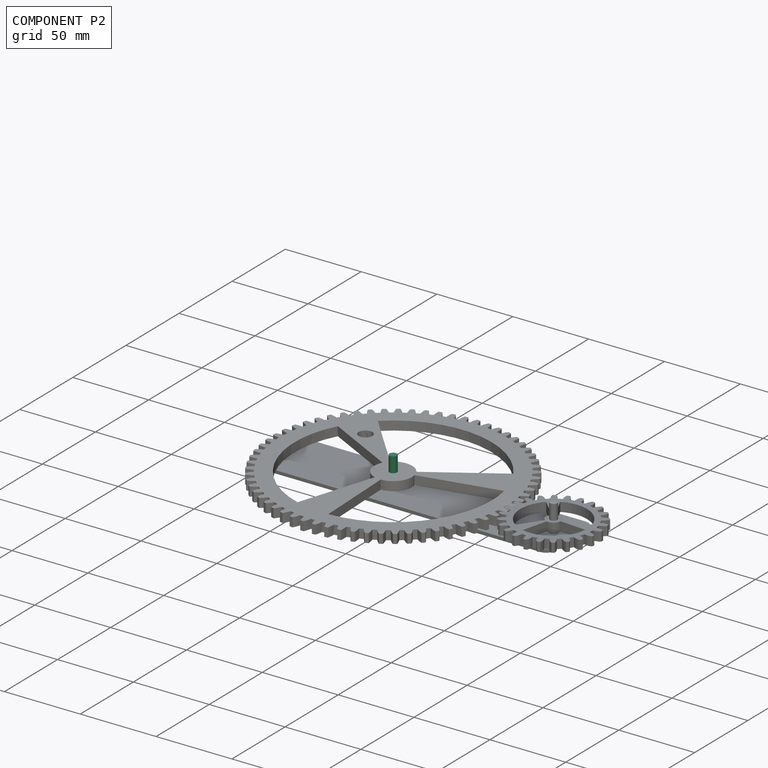
[diagram: component P2 — assembled]
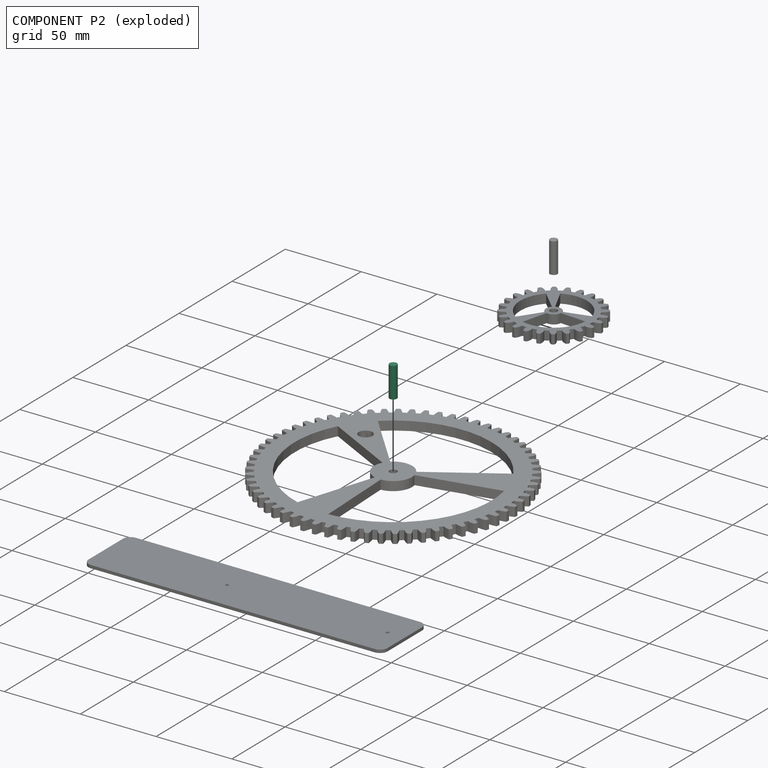
[diagram: component P2 — exploded]
COMPONENT P2 — recipe-attached (CADFS 00803802, mesh-verified: the recipe's output STEP matches this component's geometry to below the mesh-comparison resolution (tessellation chordal tolerance ~0.0317 mm)).
Held by: REVOLUTE mate "Revolute 1" to P0; PLANAR mate "Planar 1" to P3; SLIDER mate "Slider 1" to P3.
Construction recipe (FeatureScript — the CAD program that rebuilds this solid; sketch coordinates are in the units given by the * unit suffixes, e.g. mm):

FeatureScript 1511;
import(path : "onshape/std/geometry.fs", version : "1511.0");
import(path : "onshape/std/common.fs", version : "1511.0");
const mm = millimeter;
const VERTEX = EntityType.VERTEX;
const EDGE = EntityType.EDGE;
const FACE = EntityType.FACE;
const BODY = EntityType.BODY;
function v(x, y){return vector(x, y);}
function OD(order){return orderDisambiguation(order);}
function OSD(set){return originalSetDisambiguation(set);}
function TD(topology){return topologyDisambiguation(topology);}
function TDD(query){return trueDependencyDisambiguation(query);}
function sQuery(a, b, c) {return sketchEntityQuery(a, b, c);}

annotation { "Feature Type Name" : "Feature", "Feature Type Description" : "" }
export const myFeature = defineFeature(function(context is Context, id is Id, definition is map)
    precondition{}
    {
        {
            var Q0;
            Q0=qCreatedBy(makeId("Top.planeOp"),FACE);
            var sketch = newSketch(context, id + "F0", { "sketchPlane" : qUnion([Q0])});
            skCircle(sketch, "E0", {"center": v(0, 0) * mm, "radius": 2.45 * mm});
            skSolve(sketch);
        }
        {
            var Q0;
            Q0=qSketchRegion(id+"F0",true);
            extrude(context, id + "F1", {"entities" : qUnion([Q0]), "depth" : 20 * mm});
        }
    });
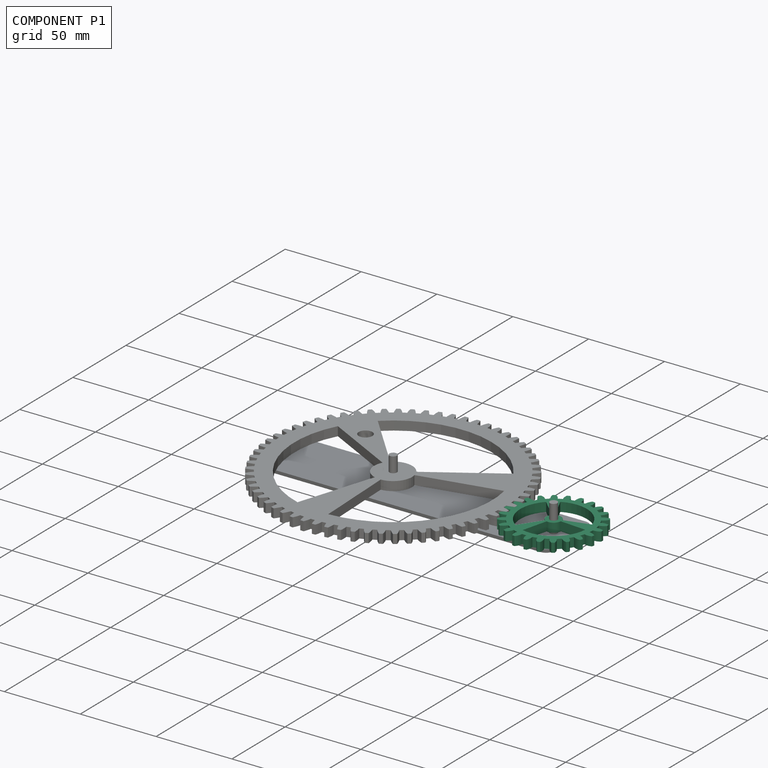
[diagram: component P1 — assembled]
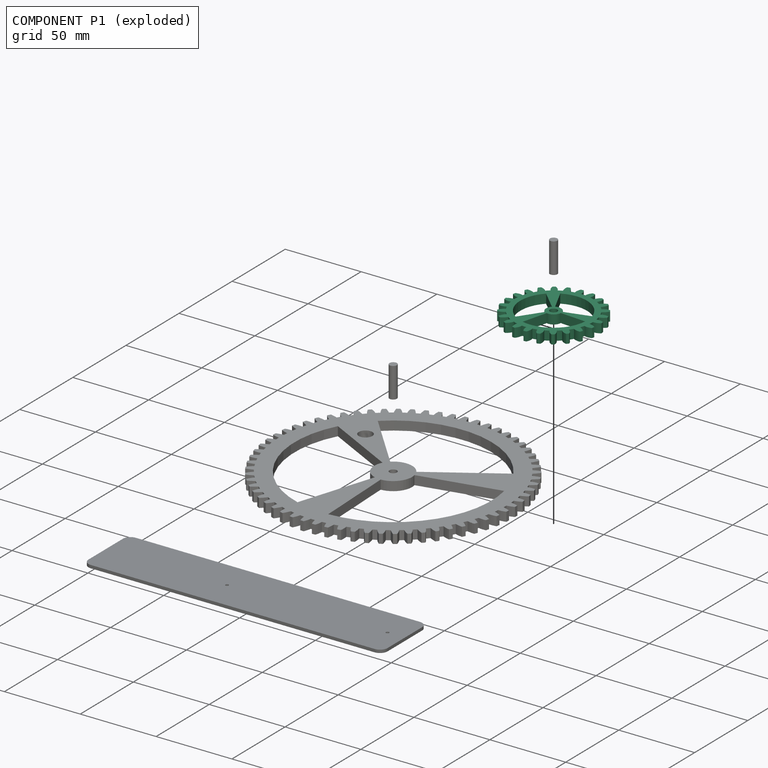
[diagram: component P1 — exploded]
COMPONENT P1 — recipe-attached (CADFS 00803801, mesh-verified: the recipe's output STEP matches this component's geometry to below the mesh-comparison resolution (tessellation chordal tolerance ~0.13 mm)).
Held by: REVOLUTE mate "Revolute 2" to P4.
Construction recipe (FeatureScript — the CAD program that rebuilds this solid; sketch coordinates are in the units given by the * unit suffixes, e.g. mm):

FeatureScript 1511;
import(path : "onshape/std/geometry.fs", version : "1511.0");
import(path : "onshape/std/common.fs", version : "1511.0");
const mm = millimeter;
const VERTEX = EntityType.VERTEX;
const EDGE = EntityType.EDGE;
const FACE = EntityType.FACE;
const BODY = EntityType.BODY;
function v(x, y){return vector(x, y);}
function OD(order){return orderDisambiguation(order);}
function OSD(set){return originalSetDisambiguation(set);}
function TD(topology){return topologyDisambiguation(topology);}
function TDD(query){return trueDependencyDisambiguation(query);}
function sQuery(a, b, c) {return sketchEntityQuery(a, b, c);}

annotation { "Feature Type Name" : "Feature", "Feature Type Description" : "" }
export const myFeature = defineFeature(function(context is Context, id is Id, definition is map)
    precondition{}
    {
        {
            var Q0;
            Q0=qCreatedBy(makeId("Top.planeOp"),FACE);
            var sketch = newSketch(context, id + "F0", { "sketchPlane" : qUnion([Q0])});
            skCircle(sketch, "E0", {"center": v(0, 0) * mm, "radius": 25.8 * mm, "construction": true});
            skCircle(sketch, "E1", {"center": v(0, 0) * mm, "radius": 28.15 * mm, "construction": true});
            skCircle(sketch, "E2", {"center": v(0, 0) * mm, "radius": 30.5 * mm, "construction": true});
            skLineSegment(sketch, "E3", {"start": v(0, 0) * mm, "end": v(0, 14.58) * mm, "construction": true});
            skLineSegment(sketch, "E4", {"start": v(0, 0) * mm, "end": v(-0.95, 14.56) * mm, "construction": true});
            skLineSegment(sketch, "E5", {"start": v(0, 28.15) * mm, "end": v(-10.54, 28.15) * mm, "construction": true});
            skLineSegment(sketch, "E6", {"start": v(0, 28.15) * mm, "end": v(-11.63, 25.04) * mm, "construction": true});
            skCircle(sketch, "E7", {"center": v(0, 28.15) * mm, "radius": 7.04 * mm, "construction": true});
            skCircle(sketch, "E8", {"center": v(-6.8, 26.33) * mm, "radius": 7.04 * mm, "construction": true});
            skArc(sketch, "E9", {"start": v(-13.6, 28.15) * mm, "mid": v(-13.7, 27.68) * mm, "end": v(-13.78, 27.2) * mm});
            skPoint(sketch, "E10.center", {"position": v(4.35, 4.65) * mm});
            skCircle(sketch, "E11", {"center": v(0, 0) * mm, "radius": 2.45 * mm});
            skArc(sketch, "E12", {"start": v(0.22, 25.8) * mm, "mid": v(-0.03, 28.26) * mm, "end": v(-1.11, 30.48) * mm});
            skArc(sketch, "E13.MirrorCS", {"start": v(-3.59, 25.56) * mm, "mid": v(-3.66, 28.02) * mm, "end": v(-2.88, 30.36) * mm});
            skArc(sketch, "E14", {"start": v(-1.11, 30.48) * mm, "mid": v(-2, 30.43) * mm, "end": v(-2.88, 30.36) * mm});
            skArc(sketch, "E15.1.0", {"start": v(-8.96, 29.15) * mm, "mid": v(-9.8, 28.88) * mm, "end": v(-10.64, 28.59) * mm});
            skArc(sketch, "E15.1.1", {"start": v(-6.47, 24.98) * mm, "mid": v(-7.34, 27.3) * mm, "end": v(-8.96, 29.15) * mm});
            skArc(sketch, "E15.1.2", {"start": v(-10.08, 23.76) * mm, "mid": v(-10.79, 26.12) * mm, "end": v(-10.64, 28.59) * mm});
            skArc(sketch, "E15.2.0", {"start": v(-16.2, 25.84) * mm, "mid": v(-16.94, 25.36) * mm, "end": v(-17.67, 24.86) * mm});
            skArc(sketch, "E15.2.1", {"start": v(-12.71, 22.46) * mm, "mid": v(-14.16, 24.46) * mm, "end": v(-16.2, 25.84) * mm});
            skArc(sketch, "E15.2.2", {"start": v(-15.88, 20.34) * mm, "mid": v(-17.18, 22.44) * mm, "end": v(-17.67, 24.86) * mm});
            skArc(sketch, "E15.3.0", {"start": v(-22.34, 20.77) * mm, "mid": v(-22.93, 20.11) * mm, "end": v(-23.5, 19.44) * mm});
            skArc(sketch, "E15.3.1", {"start": v(-18.1, 18.4) * mm, "mid": v(-20, 19.96) * mm, "end": v(-22.34, 20.77) * mm});
            skArc(sketch, "E15.3.2", {"start": v(-20.6, 15.54) * mm, "mid": v(-22.4, 17.23) * mm, "end": v(-23.5, 19.44) * mm});
            skArc(sketch, "E15.4.0", {"start": v(-26.95, 14.28) * mm, "mid": v(-27.35, 13.49) * mm, "end": v(-27.73, 12.7) * mm});
            skArc(sketch, "E15.4.1", {"start": v(-22.24, 13.1) * mm, "mid": v(-24.5, 14.1) * mm, "end": v(-26.95, 14.28) * mm});
            skArc(sketch, "E15.4.2", {"start": v(-23.93, 9.67) * mm, "mid": v(-26.1, 10.84) * mm, "end": v(-27.73, 12.7) * mm});
            skArc(sketch, "E15.5.0", {"start": v(-29.73, 6.81) * mm, "mid": v(-29.91, 5.95) * mm, "end": v(-30.07, 5.08) * mm});
            skArc(sketch, "E15.5.1", {"start": v(-24.87, 6.9) * mm, "mid": v(-27.3, 7.29) * mm, "end": v(-29.73, 6.81) * mm});
            skArc(sketch, "E15.5.2", {"start": v(-25.61, 3.15) * mm, "mid": v(-28.02, 3.72) * mm, "end": v(-30.07, 5.08) * mm});
            skArc(sketch, "E15.6.0", {"start": v(-30.48, -1.11) * mm, "mid": v(-30.43, -2) * mm, "end": v(-30.36, -2.88) * mm});
            skArc(sketch, "E15.6.1", {"start": v(-25.8, 0.22) * mm, "mid": v(-28.26, -0.03) * mm, "end": v(-30.48, -1.11) * mm});
            skArc(sketch, "E15.6.2", {"start": v(-25.56, -3.59) * mm, "mid": v(-28.02, -3.66) * mm, "end": v(-30.36, -2.88) * mm});
            skArc(sketch, "E15.7.0", {"start": v(-29.15, -8.96) * mm, "mid": v(-28.88, -9.8) * mm, "end": v(-28.59, -10.64) * mm});
            skArc(sketch, "E15.7.1", {"start": v(-24.98, -6.47) * mm, "mid": v(-27.3, -7.34) * mm, "end": v(-29.15, -8.96) * mm});
            skArc(sketch, "E15.7.2", {"start": v(-23.76, -10.08) * mm, "mid": v(-26.12, -10.79) * mm, "end": v(-28.59, -10.64) * mm});
            skArc(sketch, "E15.8.0", {"start": v(-25.84, -16.2) * mm, "mid": v(-25.36, -16.94) * mm, "end": v(-24.86, -17.67) * mm});
            skArc(sketch, "E15.8.1", {"start": v(-22.46, -12.71) * mm, "mid": v(-24.46, -14.16) * mm, "end": v(-25.84, -16.2) * mm});
            skArc(sketch, "E15.8.2", {"start": v(-20.34, -15.88) * mm, "mid": v(-22.44, -17.18) * mm, "end": v(-24.86, -17.67) * mm});
            skArc(sketch, "E15.9.0", {"start": v(-20.77, -22.34) * mm, "mid": v(-20.11, -22.93) * mm, "end": v(-19.44, -23.5) * mm});
            skArc(sketch, "E15.9.1", {"start": v(-18.4, -18.1) * mm, "mid": v(-19.96, -20) * mm, "end": v(-20.77, -22.34) * mm});
            skArc(sketch, "E15.9.2", {"start": v(-15.54, -20.6) * mm, "mid": v(-17.23, -22.4) * mm, "end": v(-19.44, -23.5) * mm});
            skArc(sketch, "E15.10.0", {"start": v(-14.28, -26.95) * mm, "mid": v(-13.49, -27.35) * mm, "end": v(-12.7, -27.73) * mm});
            skArc(sketch, "E15.10.1", {"start": v(-13.1, -22.24) * mm, "mid": v(-14.1, -24.5) * mm, "end": v(-14.28, -26.95) * mm});
            skArc(sketch, "E15.10.2", {"start": v(-9.67, -23.93) * mm, "mid": v(-10.84, -26.1) * mm, "end": v(-12.7, -27.73) * mm});
            skArc(sketch, "E15.11.0", {"start": v(-6.81, -29.73) * mm, "mid": v(-5.95, -29.91) * mm, "end": v(-5.08, -30.07) * mm});
            skArc(sketch, "E15.11.1", {"start": v(-6.9, -24.87) * mm, "mid": v(-7.29, -27.3) * mm, "end": v(-6.81, -29.73) * mm});
            skArc(sketch, "E15.11.2", {"start": v(-3.15, -25.61) * mm, "mid": v(-3.72, -28.02) * mm, "end": v(-5.08, -30.07) * mm});
            skArc(sketch, "E15.12.0", {"start": v(1.11, -30.48) * mm, "mid": v(2, -30.43) * mm, "end": v(2.88, -30.36) * mm});
            skArc(sketch, "E15.12.1", {"start": v(-0.22, -25.8) * mm, "mid": v(0.03, -28.26) * mm, "end": v(1.11, -30.48) * mm});
            skArc(sketch, "E15.12.2", {"start": v(3.59, -25.56) * mm, "mid": v(3.66, -28.02) * mm, "end": v(2.88, -30.36) * mm});
            skArc(sketch, "E15.13.0", {"start": v(8.96, -29.15) * mm, "mid": v(9.8, -28.88) * mm, "end": v(10.64, -28.59) * mm});
            skArc(sketch, "E15.13.1", {"start": v(6.47, -24.98) * mm, "mid": v(7.34, -27.3) * mm, "end": v(8.96, -29.15) * mm});
            skArc(sketch, "E15.13.2", {"start": v(10.08, -23.76) * mm, "mid": v(10.79, -26.12) * mm, "end": v(10.64, -28.59) * mm});
            skArc(sketch, "E15.14.0", {"start": v(16.2, -25.84) * mm, "mid": v(16.94, -25.36) * mm, "end": v(17.67, -24.86) * mm});
            skArc(sketch, "E15.14.1", {"start": v(12.71, -22.46) * mm, "mid": v(14.16, -24.46) * mm, "end": v(16.2, -25.84) * mm});
            skArc(sketch, "E15.14.2", {"start": v(15.88, -20.34) * mm, "mid": v(17.18, -22.44) * mm, "end": v(17.67, -24.86) * mm});
            skArc(sketch, "E15.15.0", {"start": v(22.34, -20.77) * mm, "mid": v(22.93, -20.11) * mm, "end": v(23.5, -19.44) * mm});
            skArc(sketch, "E15.15.1", {"start": v(18.1, -18.4) * mm, "mid": v(20, -19.96) * mm, "end": v(22.34, -20.77) * mm});
            skArc(sketch, "E15.15.2", {"start": v(20.6, -15.54) * mm, "mid": v(22.4, -17.23) * mm, "end": v(23.5, -19.44) * mm});
            skArc(sketch, "E15.16.0", {"start": v(26.95, -14.28) * mm, "mid": v(27.35, -13.49) * mm, "end": v(27.73, -12.7) * mm});
            skArc(sketch, "E15.16.1", {"start": v(22.24, -13.1) * mm, "mid": v(24.5, -14.1) * mm, "end": v(26.95, -14.28) * mm});
            skArc(sketch, "E15.16.2", {"start": v(23.93, -9.67) * mm, "mid": v(26.1, -10.84) * mm, "end": v(27.73, -12.7) * mm});
            skArc(sketch, "E15.17.0", {"start": v(29.73, -6.81) * mm, "mid": v(29.91, -5.95) * mm, "end": v(30.07, -5.08) * mm});
            skArc(sketch, "E15.17.1", {"start": v(24.87, -6.9) * mm, "mid": v(27.3, -7.29) * mm, "end": v(29.73, -6.81) * mm});
            skArc(sketch, "E15.17.2", {"start": v(25.61, -3.15) * mm, "mid": v(28.02, -3.72) * mm, "end": v(30.07, -5.08) * mm});
            skArc(sketch, "E15.18.0", {"start": v(30.48, 1.11) * mm, "mid": v(30.43, 2) * mm, "end": v(30.36, 2.88) * mm});
            skArc(sketch, "E15.18.1", {"start": v(25.8, -0.22) * mm, "mid": v(28.26, 0.03) * mm, "end": v(30.48, 1.11) * mm});
            skArc(sketch, "E15.18.2", {"start": v(25.56, 3.59) * mm, "mid": v(28.02, 3.66) * mm, "end": v(30.36, 2.88) * mm});
            skArc(sketch, "E15.19.0", {"start": v(29.15, 8.96) * mm, "mid": v(28.88, 9.8) * mm, "end": v(28.59, 10.64) * mm});
            skArc(sketch, "E15.19.1", {"start": v(24.98, 6.47) * mm, "mid": v(27.3, 7.34) * mm, "end": v(29.15, 8.96) * mm});
            skArc(sketch, "E15.19.2", {"start": v(23.76, 10.08) * mm, "mid": v(26.12, 10.79) * mm, "end": v(28.59, 10.64) * mm});
            skArc(sketch, "E15.20.0", {"start": v(25.84, 16.2) * mm, "mid": v(25.36, 16.94) * mm, "end": v(24.86, 17.67) * mm});
            skArc(sketch, "E15.20.1", {"start": v(22.46, 12.71) * mm, "mid": v(24.46, 14.16) * mm, "end": v(25.84, 16.2) * mm});
            skArc(sketch, "E15.20.2", {"start": v(20.34, 15.88) * mm, "mid": v(22.44, 17.18) * mm, "end": v(24.86, 17.67) * mm});
            skArc(sketch, "E15.21.0", {"start": v(20.77, 22.34) * mm, "mid": v(20.11, 22.93) * mm, "end": v(19.44, 23.5) * mm});
            skArc(sketch, "E15.21.1", {"start": v(18.4, 18.1) * mm, "mid": v(19.96, 20) * mm, "end": v(20.77, 22.34) * mm});
            skArc(sketch, "E15.21.2", {"start": v(15.54, 20.6) * mm, "mid": v(17.23, 22.4) * mm, "end": v(19.44, 23.5) * mm});
            skArc(sketch, "E15.22.0", {"start": v(14.28, 26.95) * mm, "mid": v(13.49, 27.35) * mm, "end": v(12.7, 27.73) * mm});
            skArc(sketch, "E15.22.1", {"start": v(13.1, 22.24) * mm, "mid": v(14.1, 24.5) * mm, "end": v(14.28, 26.95) * mm});
            skArc(sketch, "E15.22.2", {"start": v(9.67, 23.93) * mm, "mid": v(10.84, 26.1) * mm, "end": v(12.7, 27.73) * mm});
            skArc(sketch, "E15.23.0", {"start": v(6.81, 29.73) * mm, "mid": v(5.95, 29.91) * mm, "end": v(5.08, 30.07) * mm});
            skArc(sketch, "E15.23.1", {"start": v(6.9, 24.87) * mm, "mid": v(7.29, 27.3) * mm, "end": v(6.81, 29.73) * mm});
            skArc(sketch, "E15.23.2", {"start": v(3.15, 25.61) * mm, "mid": v(3.72, 28.02) * mm, "end": v(5.08, 30.07) * mm});
            skArc(sketch, "E16", {"start": v(3.15, 25.61) * mm, "mid": v(1.69, 25.75) * mm, "end": v(0.22, 25.8) * mm});
            skArc(sketch, "E17.1.0", {"start": v(-3.59, 25.56) * mm, "mid": v(-5.03, 25.31) * mm, "end": v(-6.47, 24.98) * mm});
            skArc(sketch, "E17.2.0", {"start": v(-10.08, 23.76) * mm, "mid": v(-11.41, 23.15) * mm, "end": v(-12.71, 22.46) * mm});
            skArc(sketch, "E17.3.0", {"start": v(-15.88, 20.34) * mm, "mid": v(-17.02, 19.4) * mm, "end": v(-18.1, 18.4) * mm});
            skArc(sketch, "E17.4.0", {"start": v(-20.6, 15.54) * mm, "mid": v(-21.46, 14.34) * mm, "end": v(-22.24, 13.1) * mm});
            skArc(sketch, "E17.5.0", {"start": v(-23.93, 9.67) * mm, "mid": v(-24.44, 8.3) * mm, "end": v(-24.87, 6.9) * mm});
            skArc(sketch, "E17.6.0", {"start": v(-25.61, 3.15) * mm, "mid": v(-25.75, 1.69) * mm, "end": v(-25.8, 0.22) * mm});
            skArc(sketch, "E17.7.0", {"start": v(-25.56, -3.59) * mm, "mid": v(-25.31, -5.03) * mm, "end": v(-24.98, -6.47) * mm});
            skArc(sketch, "E17.8.0", {"start": v(-23.76, -10.08) * mm, "mid": v(-23.15, -11.41) * mm, "end": v(-22.46, -12.71) * mm});
            skArc(sketch, "E17.9.0", {"start": v(-20.34, -15.88) * mm, "mid": v(-19.4, -17.02) * mm, "end": v(-18.4, -18.1) * mm});
            skArc(sketch, "E17.10.0", {"start": v(-15.54, -20.6) * mm, "mid": v(-14.34, -21.46) * mm, "end": v(-13.1, -22.24) * mm});
            skArc(sketch, "E17.11.0", {"start": v(-9.67, -23.93) * mm, "mid": v(-8.3, -24.44) * mm, "end": v(-6.9, -24.87) * mm});
            skArc(sketch, "E17.12.0", {"start": v(-3.15, -25.61) * mm, "mid": v(-1.69, -25.75) * mm, "end": v(-0.22, -25.8) * mm});
            skArc(sketch, "E17.13.0", {"start": v(3.59, -25.56) * mm, "mid": v(5.03, -25.31) * mm, "end": v(6.47, -24.98) * mm});
            skArc(sketch, "E17.14.0", {"start": v(10.08, -23.76) * mm, "mid": v(11.41, -23.15) * mm, "end": v(12.71, -22.46) * mm});
            skArc(sketch, "E17.15.0", {"start": v(15.88, -20.34) * mm, "mid": v(17.02, -19.4) * mm, "end": v(18.1, -18.4) * mm});
            skArc(sketch, "E17.16.0", {"start": v(20.6, -15.54) * mm, "mid": v(21.46, -14.34) * mm, "end": v(22.24, -13.1) * mm});
            skArc(sketch, "E17.17.0", {"start": v(23.93, -9.67) * mm, "mid": v(24.44, -8.3) * mm, "end": v(24.87, -6.9) * mm});
            skArc(sketch, "E17.18.0", {"start": v(25.61, -3.15) * mm, "mid": v(25.75, -1.69) * mm, "end": v(25.8, -0.22) * mm});
            skArc(sketch, "E17.19.0", {"start": v(25.56, 3.59) * mm, "mid": v(25.31, 5.03) * mm, "end": v(24.98, 6.47) * mm});
            skArc(sketch, "E17.20.0", {"start": v(23.76, 10.08) * mm, "mid": v(23.15, 11.41) * mm, "end": v(22.46, 12.71) * mm});
            skArc(sketch, "E17.21.0", {"start": v(20.34, 15.88) * mm, "mid": v(19.4, 17.02) * mm, "end": v(18.4, 18.1) * mm});
            skArc(sketch, "E17.22.0", {"start": v(15.54, 20.6) * mm, "mid": v(14.34, 21.46) * mm, "end": v(13.1, 22.24) * mm});
            skArc(sketch, "E17.23.0", {"start": v(9.67, 23.93) * mm, "mid": v(8.3, 24.44) * mm, "end": v(6.9, 24.87) * mm});
            skSolve(sketch);
        }
        {
            var Q0;
            Q0=makeQuery(id+"F0.imprint","IMPRINT",FACE,{"disambiguationData":[TD([[makeQuery(id+"F0.imprint","IMPRINT",EDGE,{"derivedFrom":sQuery(id+"F0.wireOp",EDGE,"E11")}),-1.0]])]});
            extrude(context, id + "F1", {"entities" : qUnion([Q0]), "depth" : 6 * mm});
        }
        {
            var Q0;
            Q0=makeQuery(id+"F1.opExtrude","CAP_FACE",FACE,{"disambiguationData":[OSD([sQuery(id+"F0.wireOp",EDGE,"E11"),sQuery(id+"F0.wireOp",EDGE,"E12"),sQuery(id+"F0.wireOp",EDGE,"E13.MirrorCS"),sQuery(id+"F0.wireOp",EDGE,"E14"),sQuery(id+"F0.wireOp",EDGE,"E15.1.0"),sQuery(id+"F0.wireOp",EDGE,"E15.1.1"),sQuery(id+"F0.wireOp",EDGE,"E15.1.2"),sQuery(id+"F0.wireOp",EDGE,"E15.2.0"),sQuery(id+"F0.wireOp",EDGE,"E15.2.1"),sQuery(id+"F0.wireOp",EDGE,"E15.2.2"),sQuery(id+"F0.wireOp",EDGE,"E15.3.0"),sQuery(id+"F0.wireOp",EDGE,"E15.3.1"),sQuery(id+"F0.wireOp",EDGE,"E15.3.2"),sQuery(id+"F0.wireOp",EDGE,"E15.4.0"),sQuery(id+"F0.wireOp",EDGE,"E15.4.1"),sQuery(id+"F0.wireOp",EDGE,"E15.4.2"),sQuery(id+"F0.wireOp",EDGE,"E15.5.0"),sQuery(id+"F0.wireOp",EDGE,"E15.5.1"),sQuery(id+"F0.wireOp",EDGE,"E15.5.2"),sQuery(id+"F0.wireOp",EDGE,"E15.6.0"),sQuery(id+"F0.wireOp",EDGE,"E15.6.1"),sQuery(id+"F0.wireOp",EDGE,"E15.6.2"),sQuery(id+"F0.wireOp",EDGE,"E15.7.0"),sQuery(id+"F0.wireOp",EDGE,"E15.7.1"),sQuery(id+"F0.wireOp",EDGE,"E15.7.2"),sQuery(id+"F0.wireOp",EDGE,"E15.8.0"),sQuery(id+"F0.wireOp",EDGE,"E15.8.1"),sQuery(id+"F0.wireOp",EDGE,"E15.8.2"),sQuery(id+"F0.wireOp",EDGE,"E15.9.0"),sQuery(id+"F0.wireOp",EDGE,"E15.9.1"),sQuery(id+"F0.wireOp",EDGE,"E15.9.2"),sQuery(id+"F0.wireOp",EDGE,"E15.10.0"),sQuery(id+"F0.wireOp",EDGE,"E15.10.1"),sQuery(id+"F0.wireOp",EDGE,"E15.10.2"),sQuery(id+"F0.wireOp",EDGE,"E15.11.0"),sQuery(id+"F0.wireOp",EDGE,"E15.11.1"),sQuery(id+"F0.wireOp",EDGE,"E15.11.2"),sQuery(id+"F0.wireOp",EDGE,"E15.12.0"),sQuery(id+"F0.wireOp",EDGE,"E15.12.1"),sQuery(id+"F0.wireOp",EDGE,"E15.12.2"),sQuery(id+"F0.wireOp",EDGE,"E15.13.0"),sQuery(id+"F0.wireOp",EDGE,"E15.13.1"),sQuery(id+"F0.wireOp",EDGE,"E15.13.2"),sQuery(id+"F0.wireOp",EDGE,"E15.14.0"),sQuery(id+"F0.wireOp",EDGE,"E15.14.1"),sQuery(id+"F0.wireOp",EDGE,"E15.14.2"),sQuery(id+"F0.wireOp",EDGE,"E15.15.0"),sQuery(id+"F0.wireOp",EDGE,"E15.15.1"),sQuery(id+"F0.wireOp",EDGE,"E15.15.2"),sQuery(id+"F0.wireOp",EDGE,"E15.16.0"),sQuery(id+"F0.wireOp",EDGE,"E15.16.1"),sQuery(id+"F0.wireOp",EDGE,"E15.16.2"),sQuery(id+"F0.wireOp",EDGE,"E15.17.0"),sQuery(id+"F0.wireOp",EDGE,"E15.17.1"),sQuery(id+"F0.wireOp",EDGE,"E15.17.2"),sQuery(id+"F0.wireOp",EDGE,"E15.18.0"),sQuery(id+"F0.wireOp",EDGE,"E15.18.1"),sQuery(id+"F0.wireOp",EDGE,"E15.18.2"),sQuery(id+"F0.wireOp",EDGE,"E15.19.0"),sQuery(id+"F0.wireOp",EDGE,"E15.19.1"),sQuery(id+"F0.wireOp",EDGE,"E15.19.2"),sQuery(id+"F0.wireOp",EDGE,"E15.20.0"),sQuery(id+"F0.wireOp",EDGE,"E15.20.1"),sQuery(id+"F0.wireOp",EDGE,"E15.20.2"),sQuery(id+"F0.wireOp",EDGE,"E15.21.0"),sQuery(id+"F0.wireOp",EDGE,"E15.21.1"),sQuery(id+"F0.wireOp",EDGE,"E15.21.2"),sQuery(id+"F0.wireOp",EDGE,"E15.22.0"),sQuery(id+"F0.wireOp",EDGE,"E15.22.1"),sQuery(id+"F0.wireOp",EDGE,"E15.22.2"),sQuery(id+"F0.wireOp",EDGE,"E15.23.0"),sQuery(id+"F0.wireOp",EDGE,"E15.23.1"),sQuery(id+"F0.wireOp",EDGE,"E15.23.2"),sQuery(id+"F0.wireOp",EDGE,"E16"),sQuery(id+"F0.wireOp",EDGE,"E17.1.0"),sQuery(id+"F0.wireOp",EDGE,"E17.2.0"),sQuery(id+"F0.wireOp",EDGE,"E17.3.0"),sQuery(id+"F0.wireOp",EDGE,"E17.4.0"),sQuery(id+"F0.wireOp",EDGE,"E17.5.0"),sQuery(id+"F0.wireOp",EDGE,"E17.6.0"),sQuery(id+"F0.wireOp",EDGE,"E17.7.0"),sQuery(id+"F0.wireOp",EDGE,"E17.8.0"),sQuery(id+"F0.wireOp",EDGE,"E17.9.0"),sQuery(id+"F0.wireOp",EDGE,"E17.10.0"),sQuery(id+"F0.wireOp",EDGE,"E17.11.0"),sQuery(id+"F0.wireOp",EDGE,"E17.12.0"),sQuery(id+"F0.wireOp",EDGE,"E17.13.0"),sQuery(id+"F0.wireOp",EDGE,"E17.14.0"),sQuery(id+"F0.wireOp",EDGE,"E17.15.0"),sQuery(id+"F0.wireOp",EDGE,"E17.16.0"),sQuery(id+"F0.wireOp",EDGE,"E17.17.0"),sQuery(id+"F0.wireOp",EDGE,"E17.18.0"),sQuery(id+"F0.wireOp",EDGE,"E17.19.0"),sQuery(id+"F0.wireOp",EDGE,"E17.20.0"),sQuery(id+"F0.wireOp",EDGE,"E17.21.0"),sQuery(id+"F0.wireOp",EDGE,"E17.22.0"),sQuery(id+"F0.wireOp",EDGE,"E17.23.0")])],"isStart":false});
            var sketch = newSketch(context, id + "F2", { "sketchPlane" : qUnion([Q0])});
            skCircle(sketch, "E18", {"center": v(0, 0) * mm, "radius": 5 * mm});
            skLineSegment(sketch, "E19", {"start": v(0, 0) * mm, "end": v(5, 0) * mm, "construction": true});
            skLineSegment(sketch, "E20", {"start": v(0, 0) * mm, "end": v(-0.87, 4.92) * mm, "construction": true});
            skLineSegment(sketch, "E21", {"start": v(5, 0) * mm, "end": v(22, 0) * mm});
            skLineSegment(sketch, "E22", {"start": v(-0.87, 4.92) * mm, "end": v(-3.82, 21.67) * mm});
            skArc(sketch, "E23", {"start": v(22, 0) * mm, "mid": v(14.14, 16.85) * mm, "end": v(-3.82, 21.67) * mm});
            skArc(sketch, "E24.1.0", {"start": v(-11, 19.05) * mm, "mid": v(-21.67, 3.82) * mm, "end": v(-16.85, -14.14) * mm});
            skLineSegment(sketch, "E24.1.1", {"start": v(-2.5, 4.33) * mm, "end": v(-11, 19.05) * mm});
            skLineSegment(sketch, "E24.1.2", {"start": v(-3.83, -3.21) * mm, "end": v(-16.85, -14.14) * mm});
            skArc(sketch, "E24.2.0", {"start": v(-11, -19.05) * mm, "mid": v(7.52, -20.67) * mm, "end": v(20.67, -7.52) * mm});
            skLineSegment(sketch, "E24.2.1", {"start": v(-2.5, -4.33) * mm, "end": v(-11, -19.05) * mm});
            skLineSegment(sketch, "E24.2.2", {"start": v(4.7, -1.71) * mm, "end": v(20.67, -7.52) * mm});
            skSolve(sketch);
        }
        {
            var Q0;
            Q0=makeQuery(id+"F2.imprint","IMPRINT",FACE,{"disambiguationData":[TD([[makeQuery(id+"F2.imprint","IMPRINT",EDGE,{"derivedFrom":sQuery(id+"F2.wireOp",EDGE,"E24.2.0")}),1.0]])]});
            var Q1;
            {var subQ0=sQuery(id+"F2.wireOp",EDGE,"E21");Q1=makeQuery(id+"F2.imprint","IMPRINT",FACE,{"disambiguationData":[TD([[makeQuery(id+"F2.imprint","IMPRINT",EDGE,{"derivedFrom":subQ0}),1.0]])]});}
            var Q2;
            Q2=makeQuery(id+"F2.imprint","IMPRINT",FACE,{"disambiguationData":[TD([[makeQuery(id+"F2.imprint","IMPRINT",EDGE,{"derivedFrom":sQuery(id+"F2.wireOp",EDGE,"E24.1.0")}),1.0]])]});
            extrude(context, id + "F3", {"entities" : qUnion([Q0, Q1, Q2]), "operationType" : NewBodyOperationType.REMOVE, "oppositeDirection" : true, "depth" : 25 * mm});
        }
    });
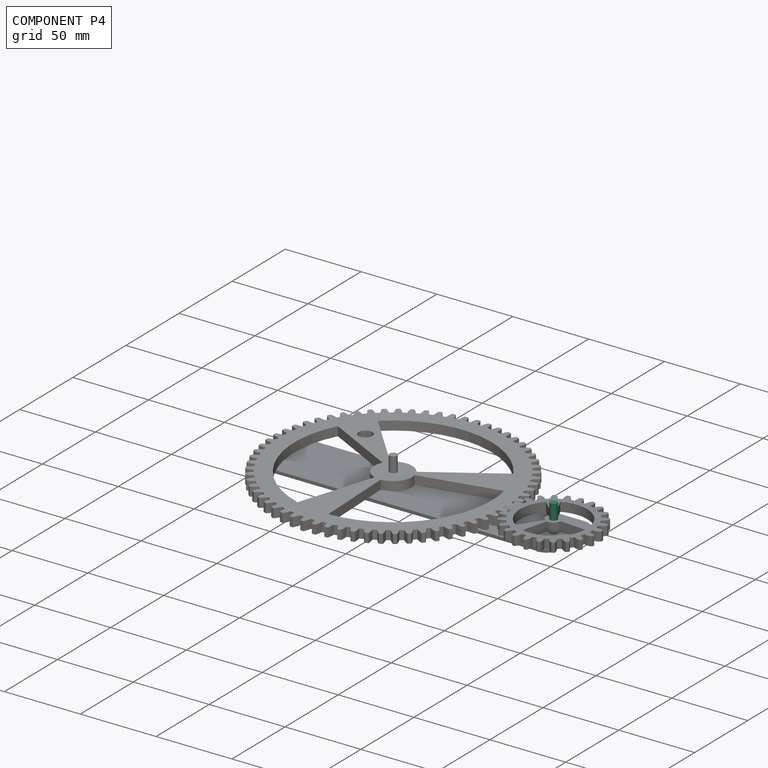
[diagram: component P4 — assembled]
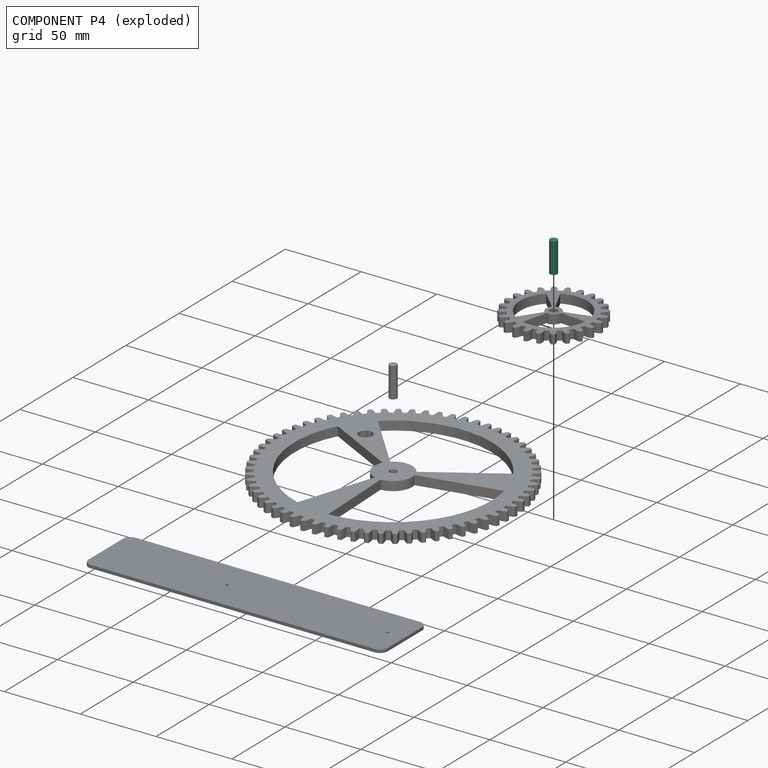
[diagram: component P4 — exploded]
COMPONENT P4 — same part as P2 (CADFS 00803802); its construction recipe is shown at P2.
Held by: SLIDER mate "Slider 2" to P3; REVOLUTE mate "Revolute 2" to P1; PLANAR mate "Planar 2" to P3.
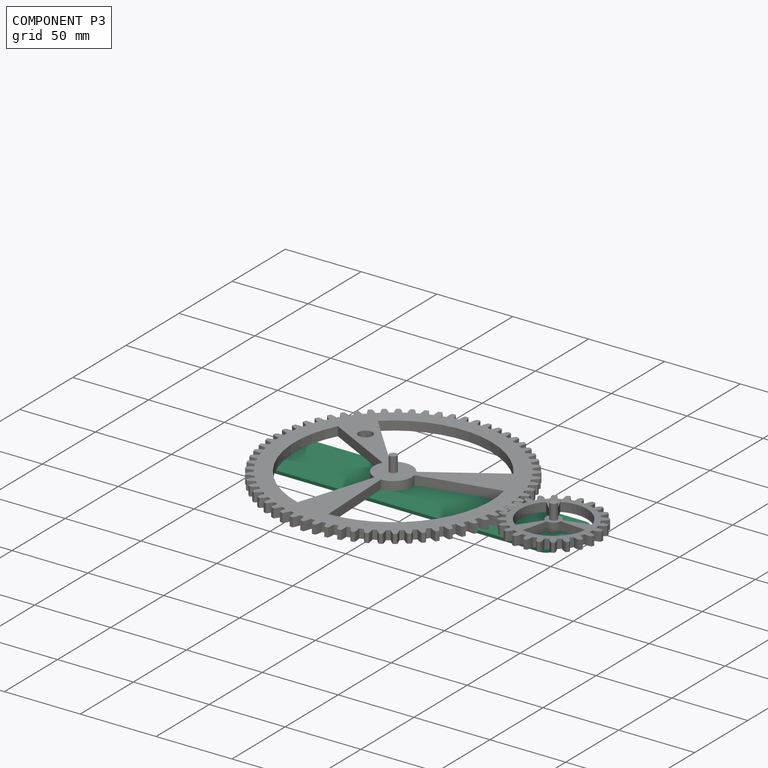
[diagram: component P3 — assembled]
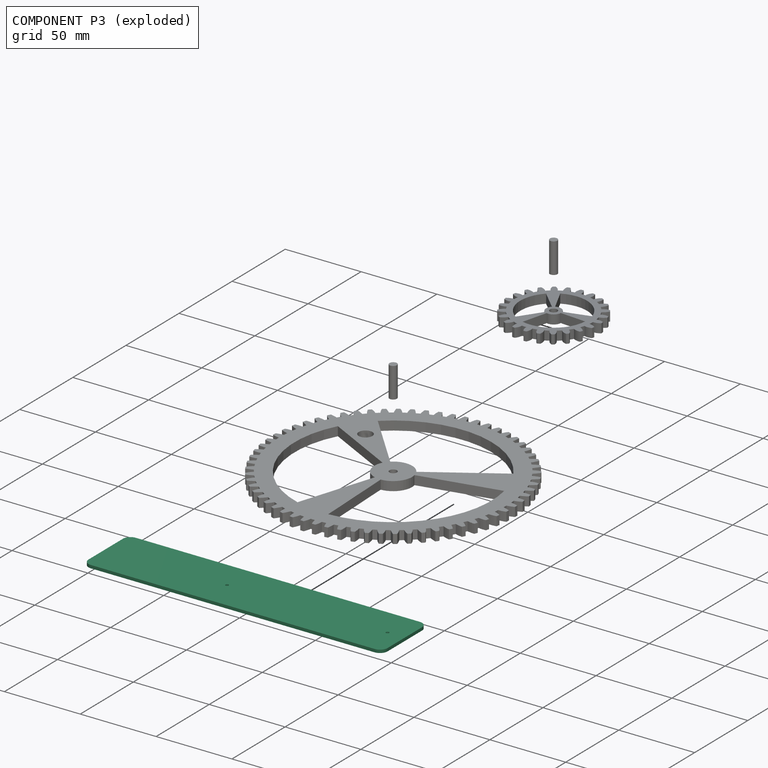
[diagram: component P3 — exploded]
COMPONENT P3 — recipe-attached (CADFS 00803803, mesh-verified: the recipe's output STEP matches this component's geometry to below the mesh-comparison resolution (tessellation chordal tolerance ~0.303 mm)).
Held by: SLIDER mate "Slider 2" to P4; PLANAR mate "Planar 1" to P2; SLIDER mate "Slider 1" to P2; PLANAR mate "Planar 2" to P4.
Construction recipe (FeatureScript — the CAD program that rebuilds this solid; sketch coordinates are in the units given by the * unit suffixes, e.g. mm):

FeatureScript 1511;
import(path : "onshape/std/geometry.fs", version : "1511.0");
import(path : "onshape/std/common.fs", version : "1511.0");
const mm = millimeter;
const VERTEX = EntityType.VERTEX;
const EDGE = EntityType.EDGE;
const FACE = EntityType.FACE;
const BODY = EntityType.BODY;
function v(x, y){return vector(x, y);}
function OD(order){return orderDisambiguation(order);}
function OSD(set){return originalSetDisambiguation(set);}
function TD(topology){return topologyDisambiguation(topology);}
function TDD(query){return trueDependencyDisambiguation(query);}
function sQuery(a, b, c) {return sketchEntityQuery(a, b, c);}

annotation { "Feature Type Name" : "Feature", "Feature Type Description" : "" }
export const myFeature = defineFeature(function(context is Context, id is Id, definition is map)
    precondition{}
    {
        {
            var Q0;
            Q0=qCreatedBy(makeId("Top.planeOp"),FACE);
            var sketch = newSketch(context, id + "F0", { "sketchPlane" : qUnion([Q0])});
            skLineSegment(sketch, "E0.bottom", {"start": v(-165.17, 21.2) * mm, "end": v(32, 21.2) * mm});
            skLineSegment(sketch, "E0.top", {"start": v(-165.17, -21.2) * mm, "end": v(32, -21.2) * mm});
            skLineSegment(sketch, "E0.left", {"start": v(-165.17, 21.2) * mm, "end": v(-165.17, -21.2) * mm});
            skLineSegment(sketch, "E0.right", {"start": v(32, 21.2) * mm, "end": v(32, -21.2) * mm});
            skCircle(sketch, "E1", {"center": v(20.6, 0) * mm, "radius": 1 * mm});
            skCircle(sketch, "E2", {"center": v(-85.17, 0) * mm, "radius": 1 * mm});
            skSolve(sketch);
        }
        {
            var Q0;
            Q0=qSketchRegion(id+"F0",true);
            var Q1;
            Q1=makeQuery(id+"F0.imprint","IMPRINT",FACE,{"disambiguationData":[TD([[makeQuery(id+"F0.imprint","IMPRINT",EDGE,{"derivedFrom":sQuery(id+"F0.wireOp",EDGE,"E0.bottom")}),-1.0]])]});
            extrude(context, id + "F1", {"entities" : qUnion([Q0, Q1]), "depth" : 2 * mm});
        }
        {
            var Q0;
            Q0=makeQuery(id+"F1.opExtrude","SWEPT_EDGE",EDGE,{"disambiguationData":[OSD([sQuery(id+"F0.wireOp",EDGE,"E0.top"),sQuery(id+"F0.wireOp",EDGE,"E0.right")])]});
            var Q1;
            Q1=makeQuery(id+"F1.opExtrude","SWEPT_EDGE",EDGE,{"disambiguationData":[OSD([sQuery(id+"F0.wireOp",EDGE,"E0.bottom"),sQuery(id+"F0.wireOp",EDGE,"E0.right")])]});
            var Q2;
            Q2=makeQuery(id+"F1.opExtrude","SWEPT_EDGE",EDGE,{"disambiguationData":[OSD([sQuery(id+"F0.wireOp",EDGE,"E0.bottom"),sQuery(id+"F0.wireOp",EDGE,"E0.left")])]});
            var Q3;
            Q3=makeQuery(id+"F1.opExtrude","SWEPT_EDGE",EDGE,{"disambiguationData":[OSD([sQuery(id+"F0.wireOp",EDGE,"E0.top"),sQuery(id+"F0.wireOp",EDGE,"E0.left")])]});
            fillet(context, id + "F2", {"entities" : qUnion([Q0, Q1, Q2, Q3]), "radius" : 5 * mm, "tangentPropagation" : true, "allowEdgeOverflow" : false});
        }
    });
PROVENANCE & LICENSES
Assembly (occurrences, transforms, mates, per-part STEP geometry): AutoMate dataset, Zenodo record 7776208, CC0.
Construction recipes: CADFS (HuggingFace VladPyatov/CADFS, CC-BY-4.0, layered over the ABC dataset), FeatureScript reconstruction programs keyed by ABC model id.
Join: ABC meta listings map ABC model id -> Onshape documentId; within a shared document, parts are matched by geometric signature (bounding-box dims + volume at 0.1% relative tolerance, exact B-rep face/solid counts).
Verification: 5 of this assembly's 5 components carry a recipe attachment, and every attachment is mesh-verified: the CADFS STEP and the AutoMate member STEP were compared as meshes in their shared local frame (symmetric sampled-point-to-mesh distance); worst across the 5 attachments: below the mesh-comparison resolution (tessellation chordal tolerance ~0.339 mm) on a 226 mm part.
Renders: orthographic iso camera (az 35 / el 25); the floor grid conveys scale (grid pitch printed in each image; no ruler). In the exploded view each component is displaced by its stored offset vector: the offsets alone carry the explosion direction (mate normal/axis signs are not orientation cues and do not encode it), and separation distances are assigned per mate-chain, not proportionally to assembly-order depth.
